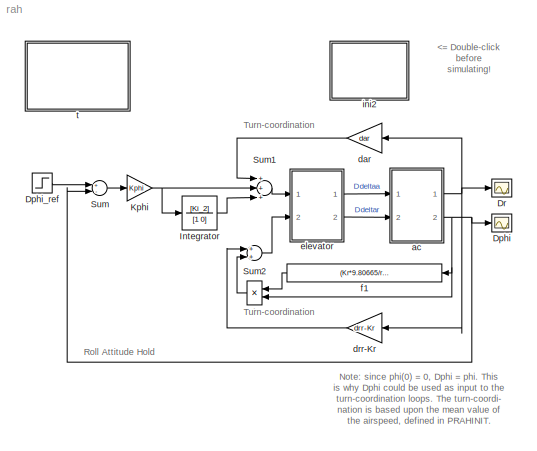
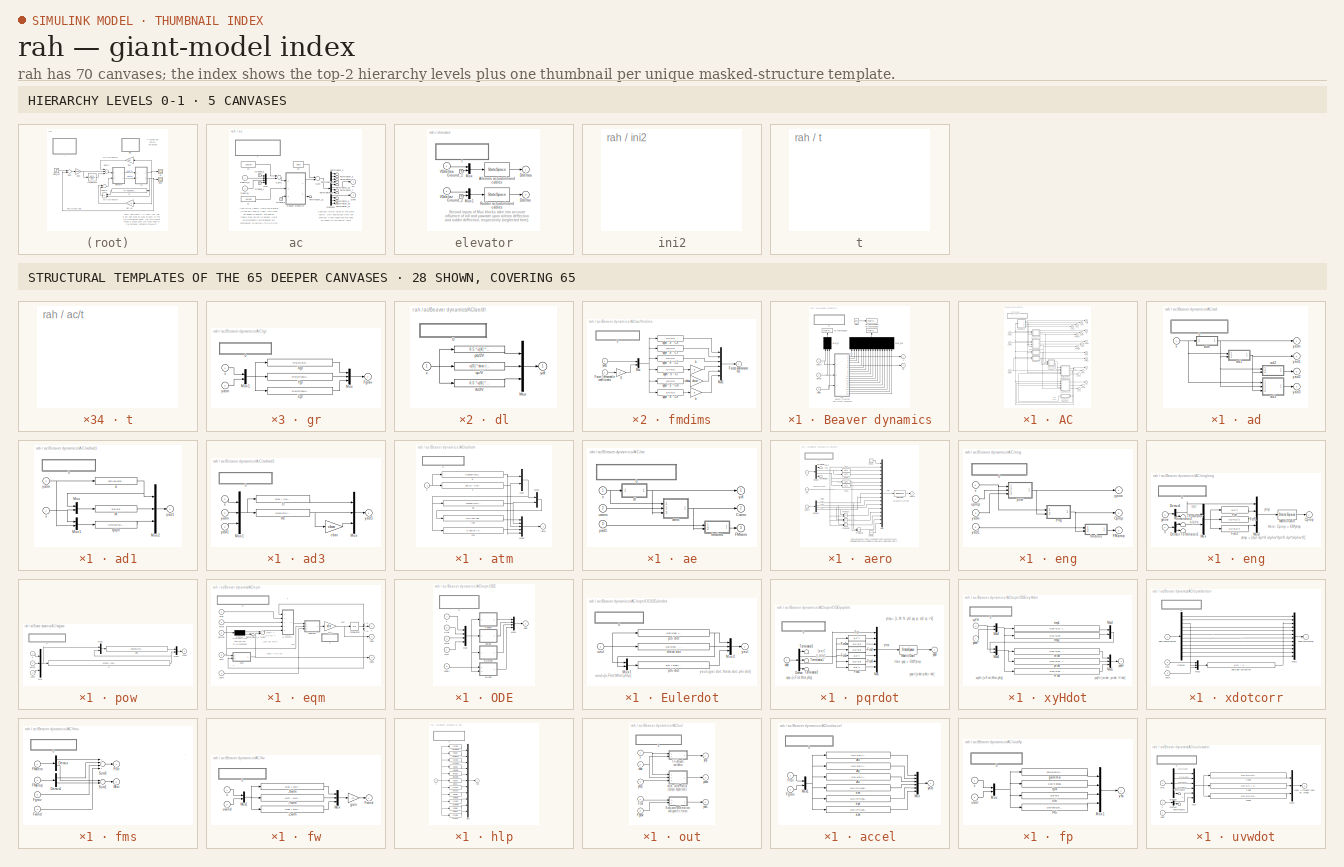
[diagram: thumbnail index - top-2 hierarchy levels (5 canvases) + 28 structural-template representatives of the remaining 65 canvases]
MODEL rah
KIND model
CONFIG AbsTol = 1e-6
CONFIG FixedStep = auto
CONFIG MaxStep = 5
CONFIG RelTol = 1e-6
CONFIG Solver = ode15s
CONFIG StartTime = 0.0
CONFIG StopTime = 60
BLOCK [Product] *
  Inputs = 2
  Ports = [2, 1, 0, 0, 0]
BLOCK [Scope] Dphi
  Decimation = 1
  Floating = off
  Grid = on
  LimitMaxRows = on
  MaxRows = 5000
  Ports = [1, 0, 0, 0, 0]
  SampleInput = off
  SampleTime = 0
  SaveName = ScopeData
  SaveToWorkspace = off
  TickLabels = on
  TimeRange = 60.000000
  YMax = 0.300000
  YMin = -0.300000
  ZoomMode = on
BLOCK [Step] Dphi_ref
  After = 10*pi/180
  Before = 0
  Time = 0
BLOCK [Scope] Dr
  Decimation = 1
  Floating = off
  Grid = on
  LimitMaxRows = on
  MaxRows = 5000
  Ports = [1, 0, 0, 0, 0]
  SampleInput = off
  SampleTime = 0
  SaveName = ScopeData
  SaveToWorkspace = off
  TickLabels = on
  TimeRange = 60.000000
  YMax = 0.025000
  YMin = -0.025000
  ZoomMode = on
BLOCK [TransferFcn] Integrator
  Denominator = [1 0]
  Numerator = [Ki_2]
BLOCK [Gain] Kphi
  Gain = Kphi
BLOCK [Sum] Sum
  Inputs = +-
  Ports = [2, 1, 0, 0, 0]
BLOCK [Sum] Sum1
  Inputs = +++
  Ports = [3, 1, 0, 0, 0]
BLOCK [Sum] Sum2
  Inputs = ++
  Ports = [2, 1, 0, 0, 0]
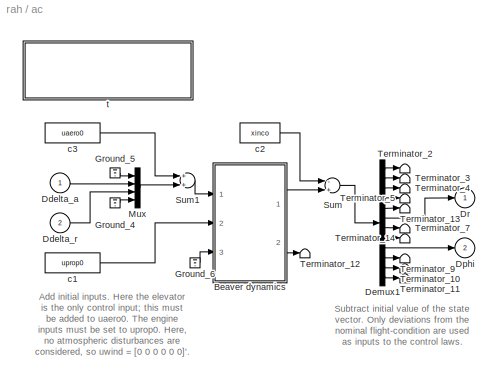
BLOCK [SubSystem] ac
  MaskDisplay = disp('BEAVER\\ndynamics')
  MaskIconFrame = on
  MaskIconOpaque = on
  MaskIconRotate = none
  MaskIconUnits = autoscale
  Ports = [2, 2, 0, 0, 0]
  ShowPortLabels = off
BLOCK [SubSystem] ac/Beaver dynamics
  Ports = [3, 2, 0, 0, 0]
  ShowPortLabels = on
BLOCK [SubSystem] ac/Beaver dynamics/0
  MaskDisplay = disp('Subsystem equivalent of\\nthe S-function BEAVER\\nM.O. Rauw, October 1997')
  MaskIconFrame = on
  MaskIconOpaque = on
  MaskIconRotate = none
  MaskIconUnits = autoscale
  OpenFcn = fdchelp level1
  Ports = [0, 0, 0, 0, 0]
  ShowPortLabels = off
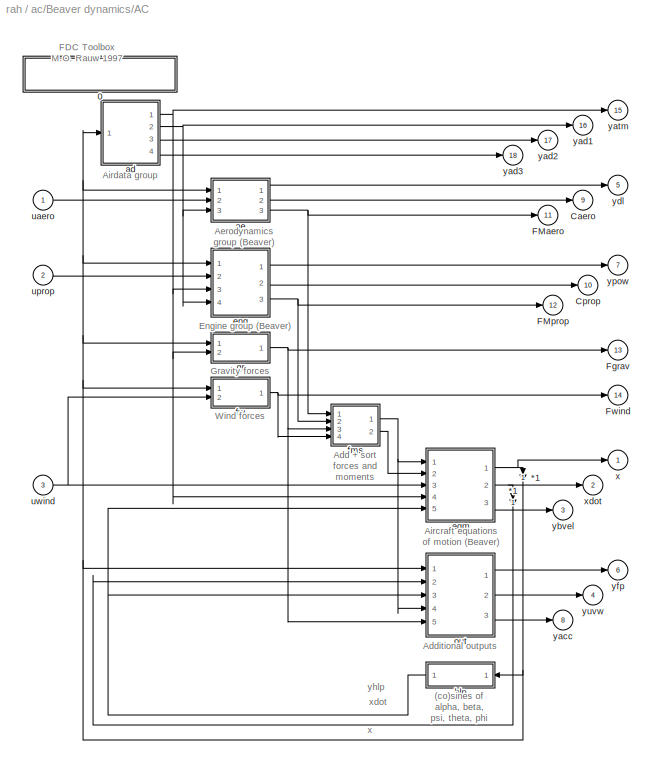
BLOCK [SubSystem] ac/Beaver dynamics/AC
  Ports = [3, 18, 0, 0, 0]
  ShowPortLabels = off
BLOCK [Gain] ac/Beaver dynamics/AC/ *1
  Gain = 1
BLOCK [Inport] ac/Beaver dynamics/AC/ uwind
  Port = 3
  PortWidth = -1
  SampleTime = -1
BLOCK [Gain] ac/Beaver dynamics/AC/*1
  Gain = 1
BLOCK [SubSystem] ac/Beaver dynamics/AC/0
  MaskDisplay = disp('BEAVER, level 2 (main level)\\nM.O. Rauw')
  MaskIconFrame = on
  MaskIconOpaque = on
  MaskIconRotate = none
  MaskIconUnits = autoscale
  OpenFcn = fdchelp level2
  Ports = [0, 0, 0, 0, 0]
  ShowPortLabels = off
BLOCK [Outport] ac/Beaver dynamics/AC/Caero
  InitialOutput = 0
  OutputWhenDisabled = held
  Port = 9
BLOCK [Outport] ac/Beaver dynamics/AC/Cprop
  InitialOutput = 0
  OutputWhenDisabled = held
  Port = 10
BLOCK [Outport] ac/Beaver dynamics/AC/FMaero
  InitialOutput = 0
  OutputWhenDisabled = held
  Port = 11
BLOCK [Outport] ac/Beaver dynamics/AC/FMprop
  InitialOutput = 0
  OutputWhenDisabled = held
  Port = 12
BLOCK [Outport] ac/Beaver dynamics/AC/Fgrav
  InitialOutput = 0
  OutputWhenDisabled = held
  Port = 13
BLOCK [Outport] ac/Beaver dynamics/AC/Fwind
  InitialOutput = 0
  OutputWhenDisabled = held
  Port = 14
BLOCK [SubSystem] ac/Beaver dynamics/AC/ad
  Ports = [1, 4, 0, 0, 0]
  ShowPortLabels = off
BLOCK [SubSystem] ac/Beaver dynamics/AC/ad/0
  MaskDisplay = disp('AIRDATA GROUP (level 3)\\nM.O. Rauw')
  MaskIconFrame = on
  MaskIconOpaque = on
  MaskIconRotate = none
  MaskIconUnits = autoscale
  OpenFcn = fdchelp adgrp
  Ports = [0, 0, 0, 0, 0]
  ShowPortLabels = off
BLOCK [SubSystem] ac/Beaver dynamics/AC/ad/ad1
  MaskDescription = Basic airdata variables
  MaskDisplay = disp('Airdata1')
  MaskHelp = eval('fdchelp airdata1')
  MaskIconFrame = on
  MaskIconOpaque = on
  MaskIconRotate = none
  MaskIconUnits = autoscale
  MaskType = Airdata1
  Ports = [2, 1, 0, 0, 0]
  ShowPortLabels = off
BLOCK [SubSystem] ac/Beaver dynamics/AC/ad/ad1/0
  MaskDisplay = disp('AIRDATA1\\nM.O. Rauw, October 1997')
  MaskIconFrame = on
  MaskIconOpaque = on
  MaskIconRotate = none
  MaskIconUnits = autoscale
  OpenFcn = fdchelp airdata1
  Ports = [0, 0, 0, 0, 0]
  ShowPortLabels = off
BLOCK [Fcn] ac/Beaver dynamics/AC/ad/ad1/M
  Expr = u[2]/u[1]
BLOCK [Mux] ac/Beaver dynamics/AC/ad/ad1/Mux
  Inputs = [1 12]
  Ports = [2, 1, 0, 0, 0]
BLOCK [Mux] ac/Beaver dynamics/AC/ad/ad1/Mux1
  Inputs = [12 5]
  Ports = [2, 1, 0, 0, 0]
BLOCK [Mux] ac/Beaver dynamics/AC/ad/ad1/Mux2
  Inputs = 3
  Ports = [3, 1, 0, 0, 0]
BLOCK [Fcn] ac/Beaver dynamics/AC/ad/ad1/a
  Expr = sqrt(401.8743*u[3])
BLOCK [Fcn] ac/Beaver dynamics/AC/ad/ad1/qdyn
  Expr = 0.5*u[13]*u[1]^2
BLOCK [Inport] ac/Beaver dynamics/AC/ad/ad1/x
  Port = 1
  PortWidth = -1
  SampleTime = -1
BLOCK [Outport] ac/Beaver dynamics/AC/ad/ad1/yad1
  InitialOutput = 0
  OutputWhenDisabled = held
  Port = 1
BLOCK [Inport] ac/Beaver dynamics/AC/ad/ad1/yatm
  Port = 2
  PortWidth = -1
  SampleTime = -1
BLOCK [SubSystem] ac/Beaver dynamics/AC/ad/ad2
  MaskDescription = More airdata variables
  MaskDisplay = disp('Airdata2')
  MaskHelp = eval('fdchelp airdata2')
  MaskIconFrame = on
  MaskIconOpaque = on
  MaskIconRotate = none
  MaskIconUnits = autoscale
  MaskType = Airdata2
  Ports = [2, 1, 0, 0, 0]
  ShowPortLabels = off
BLOCK [SubSystem] ac/Beaver dynamics/AC/ad/ad2/0
  MaskDisplay = disp('AIRDATA2\\nM.O. Rauw, October 1997')
  MaskIconFrame = on
  MaskIconOpaque = on
  MaskIconRotate = none
  MaskIconUnits = autoscale
  OpenFcn = fdchelp airdata2
  Ports = [0, 0, 0, 0, 0]
  ShowPortLabels = off
BLOCK [Mux] ac/Beaver dynamics/AC/ad/ad2/Mux
  Inputs = [5 3]
  Ports = [2, 1, 0, 0, 0]
BLOCK [Mux] ac/Beaver dynamics/AC/ad/ad2/Mux1
  Inputs = 3
  Ports = [3, 1, 0, 0, 0]
BLOCK [Fcn] ac/Beaver dynamics/AC/ad/ad2/Vc
  Expr = sqrt(579000*((1+u[1]/101325)^(1/3.5)-1))
BLOCK [Fcn] ac/Beaver dynamics/AC/ad/ad2/Ve
  Expr = sqrt(u[8] * 1.63265)
BLOCK [Fcn] ac/Beaver dynamics/AC/ad/ad2/qc
  Expr = u[2] * ((1+0.2*u[7]^2)^3.5-1)
BLOCK [Inport] ac/Beaver dynamics/AC/ad/ad2/yad1
  Port = 2
  PortWidth = -1
  SampleTime = -1
BLOCK [Outport] ac/Beaver dynamics/AC/ad/ad2/yad2
  InitialOutput = 0
  OutputWhenDisabled = held
  Port = 1
BLOCK [Inport] ac/Beaver dynamics/AC/ad/ad2/yatm
  Port = 1
  PortWidth = -1
  SampleTime = -1
BLOCK [SubSystem] ac/Beaver dynamics/AC/ad/ad3
  MaskDescription = More airdata variables
  MaskDisplay = disp('Airdata3')
  MaskHelp = eval('fdchelp airdata3')
  MaskIconFrame = on
  MaskIconOpaque = on
  MaskIconRotate = none
  MaskIconUnits = autoscale
  MaskPromptString = Mean aerodynamic chord [m]:
  MaskStyleString = edit
  MaskType = Airdata3
  MaskValueString = GM1(1)
  MaskVariables = cbar=@1;
  Ports = [3, 1, 0, 0, 0]
  ShowPortLabels = off
BLOCK [SubSystem] ac/Beaver dynamics/AC/ad/ad3/0
  MaskDisplay = disp('AIRDATA3\\nM.O. Rauw, October 1997')
  MaskIconFrame = on
  MaskIconOpaque = on
  MaskIconRotate = none
  MaskIconUnits = autoscale
  OpenFcn = fdchelp airdata3
  Ports = [0, 0, 0, 0, 0]
  ShowPortLabels = off
BLOCK [Mux] ac/Beaver dynamics/AC/ad/ad3/Mux
  Inputs = 3
  Ports = [3, 1, 0, 0, 0]
BLOCK [Mux] ac/Beaver dynamics/AC/ad/ad3/Mux1
  Inputs = [12 5 3]
  Ports = [3, 1, 0, 0, 0]
BLOCK [Fcn] ac/Beaver dynamics/AC/ad/ad3/Re
  Expr = (u[13]*u[1])/u[16]
BLOCK [Fcn] ac/Beaver dynamics/AC/ad/ad3/Tt
  Expr = u[15] * (1+0.2*u[19]^2)
BLOCK [Gain] ac/Beaver dynamics/AC/ad/ad3/cbar
  Gain = cbar
BLOCK [Inport] ac/Beaver dynamics/AC/ad/ad3/x
  Port = 1
  PortWidth = -1
  SampleTime = -1
BLOCK [Inport] ac/Beaver dynamics/AC/ad/ad3/yad1
  Port = 3
  PortWidth = -1
  SampleTime = -1
BLOCK [Outport] ac/Beaver dynamics/AC/ad/ad3/yad3
  InitialOutput = 0
  OutputWhenDisabled = held
  Port = 1
BLOCK [Inport] ac/Beaver dynamics/AC/ad/ad3/yatm
  Port = 2
  PortWidth = -1
  SampleTime = -1
BLOCK [SubSystem] ac/Beaver dynamics/AC/ad/atm
  MaskDescription = Atmosphere variables
  MaskDisplay = disp('Atmosph')
  MaskHelp = eval('fdchelp atmosph')
  MaskIconFrame = on
  MaskIconOpaque = on
  MaskIconRotate = none
  MaskIconUnits = autoscale
  MaskType = Atmosph
  Ports = [1, 1, 0, 0, 0]
  ShowPortLabels = off
BLOCK [SubSystem] ac/Beaver dynamics/AC/ad/atm/0
  MaskDisplay = disp('ATMOSPH\\nM.O. Rauw, October 1997')
  MaskIconFrame = on
  MaskIconOpaque = on
  MaskIconRotate = none
  MaskIconUnits = autoscale
  OpenFcn = fdchelp atmosph
  Ports = [0, 0, 0, 0, 0]
  ShowPortLabels = off
BLOCK [Mux] ac/Beaver dynamics/AC/ad/atm/Mux
  Inputs = 2
  Ports = [2, 1, 0, 0, 0]
BLOCK [Mux] ac/Beaver dynamics/AC/ad/atm/Mux1
  Inputs = [2 1]
  Ports = [2, 1, 0, 0, 0]
BLOCK [Mux] ac/Beaver dynamics/AC/ad/atm/Mux2
  Inputs = 5
  Ports = [5, 1, 0, 0, 0]
BLOCK [Fcn] ac/Beaver dynamics/AC/ad/atm/T
  Expr = 288.15 - 0.0065*u[12]
BLOCK [Fcn] ac/Beaver dynamics/AC/ad/atm/g
  Expr = 9.80665*(6371020/(6371020+u[12]))^2
BLOCK [Fcn] ac/Beaver dynamics/AC/ad/atm/mu
  Expr = (1.458*10^(-6)*u[2]^1.5)/(u[2]+110.4)
BLOCK [Fcn] ac/Beaver dynamics/AC/ad/atm/ps
  Expr = 101325*(u[2]/288.15)^(u[1]/1.86584)
BLOCK [Fcn] ac/Beaver dynamics/AC/ad/atm/rho
  Expr = u[3]/(287.053*u[2])
BLOCK [Inport] ac/Beaver dynamics/AC/ad/atm/x
  Port = 1
  PortWidth = -1
  SampleTime = -1
BLOCK [Outport] ac/Beaver dynamics/AC/ad/atm/yatm
  InitialOutput = 0
  OutputWhenDisabled = held
  Port = 1
BLOCK [Inport] ac/Beaver dynamics/AC/ad/x
  Port = 1
  PortWidth = -1
  SampleTime = -1
BLOCK [Outport] ac/Beaver dynamics/AC/ad/yad1
  InitialOutput = 0
  OutputWhenDisabled = held
  Port = 2
BLOCK [Outport] ac/Beaver dynamics/AC/ad/yad2
  InitialOutput = 0
  OutputWhenDisabled = held
  Port = 3
BLOCK [Outport] ac/Beaver dynamics/AC/ad/yad3
  InitialOutput = 0
  OutputWhenDisabled = held
  Port = 4
BLOCK [Outport] ac/Beaver dynamics/AC/ad/yatm
  InitialOutput = 0
  OutputWhenDisabled = held
  Port = 1
BLOCK [SubSystem] ac/Beaver dynamics/AC/ae
  Ports = [3, 3, 0, 0, 0]
  ShowPortLabels = off
BLOCK [SubSystem] ac/Beaver dynamics/AC/ae/0
  MaskDisplay = disp('AERODYNAMICS GROUP (level 3)\\nM.O. Rauw')
  MaskIconFrame = on
  MaskIconOpaque = on
  MaskIconRotate = none
  MaskIconUnits = autoscale
  OpenFcn = fdchelp aerogrp
  Ports = [0, 0, 0, 0, 0]
  ShowPortLabels = off
BLOCK [Outport] ac/Beaver dynamics/AC/ae/Caero
  InitialOutput = 0
  OutputWhenDisabled = held
  Port = 2
BLOCK [Outport] ac/Beaver dynamics/AC/ae/FMaero
  InitialOutput = 0
  OutputWhenDisabled = held
  Port = 3
BLOCK [SubSystem] ac/Beaver dynamics/AC/ae/aero
  MaskDescription = Aerodynamic model of the DHC-2 'Beaver'.
  MaskDisplay = disp('Aeromod\\n(Beaver)')
  MaskHelp = eval('fdchelp aeromod')
  MaskIconFrame = on
  MaskIconOpaque = on
  MaskIconRotate = none
  MaskIconUnits = autoscale
  MaskType = Aeromod
  Ports = [3, 1, 0, 0, 0]
  ShowPortLabels = off
BLOCK [SubSystem] ac/Beaver dynamics/AC/ae/aero/0
  MaskDisplay = disp('AEROMOD\\nM.O. Rauw, October 1997')
  MaskIconFrame = on
  MaskIconOpaque = on
  MaskIconRotate = none
  MaskIconUnits = autoscale
  OpenFcn = fdchelp aeromod
  Ports = [0, 0, 0, 0, 0]
  ShowPortLabels = off
BLOCK [Outport] ac/Beaver dynamics/AC/ae/aero/Caero
  InitialOutput = 0
  OutputWhenDisabled = held
  Port = 1
BLOCK [Demux] ac/Beaver dynamics/AC/ae/aero/Demux
  Outputs = [1 1 1 9]
  Ports = [1, 4, 0, 0, 0]
BLOCK [Demux] ac/Beaver dynamics/AC/ae/aero/Demux1
  Outputs = 4
  Ports = [1, 4, 0, 0, 0]
BLOCK [Fcn] ac/Beaver dynamics/AC/ae/aero/Fcn
  Expr = u[1]^2
BLOCK [Fcn] ac/Beaver dynamics/AC/ae/aero/Fcn1
  Expr = u[1]^3
BLOCK [Fcn] ac/Beaver dynamics/AC/ae/aero/Fcn2
  Expr = u[1]^2
BLOCK [Fcn] ac/Beaver dynamics/AC/ae/aero/Fcn3
  Expr = u[1]^3
BLOCK [StateSpace] ac/Beaver dynamics/AC/ae/aero/Matrix Gain
  A = A
  B = B
  C = C
  D = D
  MaskDescription = Matrix Gain
  MaskDisplay = disp('y = A*u')
  MaskHelp = This block implements an matrix gain.\\nThe matrix dimensions must be in accordance\\nwith the dimension of the inputvector.
  MaskIconFrame = on
  MaskIconOpaque = on
  MaskIconRotate = none
  MaskIconUnits = autoscale
  MaskInitialization = A = []; B = []; C = []; D = @1;
  MaskPromptString = Gain matrix:
  MaskStyleString = edit
  MaskType = Matrix Gain
  MaskValueString = AM
  X0 = 0
BLOCK [Mux] ac/Beaver dynamics/AC/ae/aero/Mux
  Inputs = [1 1 1 1 1 1 1 3 1 1 1 1 1 1 1 1 1]
  Ports = [17, 1, 0, 0, 0]
BLOCK [Product] ac/Beaver dynamics/AC/ae/aero/Product
  Inputs = 2
  Ports = [2, 1, 0, 0, 0]
BLOCK [Product] ac/Beaver dynamics/AC/ae/aero/Product1
  Inputs = 2
  Ports = [2, 1, 0, 0, 0]
BLOCK [Product] ac/Beaver dynamics/AC/ae/aero/Product2
  Inputs = 2
  Ports = [2, 1, 0, 0, 0]
BLOCK [Product] ac/Beaver dynamics/AC/ae/aero/Product3
  Inputs = 2
  Ports = [2, 1, 0, 0, 0]
BLOCK [Terminator] ac/Beaver dynamics/AC/ae/aero/Terminator
BLOCK [Terminator] ac/Beaver dynamics/AC/ae/aero/Terminator1
BLOCK [Constant] ac/Beaver dynamics/AC/ae/aero/const
  Value = 1
BLOCK [Constant] ac/Beaver dynamics/AC/ae/aero/const1
  Value = 0
BLOCK [Inport] ac/Beaver dynamics/AC/ae/aero/uaero
  Port = 2
  PortWidth = -1
  SampleTime = -1
BLOCK [Inport] ac/Beaver dynamics/AC/ae/aero/x
  Port = 1
  PortWidth = -1
  SampleTime = -1
BLOCK [Inport] ac/Beaver dynamics/AC/ae/aero/ydl
  Port = 3
  PortWidth = -1
  SampleTime = -1
BLOCK [SubSystem] ac/Beaver dynamics/AC/ae/dl
  MaskDescription = Dimensionless rotational velocities.
  MaskDisplay = disp('Dimless')
  MaskHelp = eval('fdchelp dimless')
  MaskIconFrame = on
  MaskIconOpaque = on
  MaskIconRotate = none
  MaskIconUnits = autoscale
  MaskPromptString = Mean aerodynamic chord [m]:|Wing span [m]:
  MaskStyleString = edit,edit
  MaskType = Dimless
  MaskValueString = GM1(1)|GM1(2)
  MaskVariables = cbar=@1;b=@2;
  Ports = [1, 1, 0, 0, 0]
  ShowPortLabels = off
BLOCK [SubSystem] ac/Beaver dynamics/AC/ae/dl/0
  MaskDisplay = disp('DIMLESS\\nM.O. Rauw, October 1997')
  MaskIconFrame = on
  MaskIconOpaque = on
  MaskIconRotate = none
  MaskIconUnits = autoscale
  OpenFcn = fdchelp dimless
  Ports = [0, 0, 0, 0, 0]
  ShowPortLabels = off
BLOCK [Mux] ac/Beaver dynamics/AC/ae/dl/Mux
  Inputs = 3
  Ports = [3, 1, 0, 0, 0]
BLOCK [Fcn] ac/Beaver dynamics/AC/ae/dl/pb//2V
  Expr = 0.5 * u[4] * b / u[1]
BLOCK [Fcn] ac/Beaver dynamics/AC/ae/dl/qc//V
  Expr = u[5] * cbar / u[1]
BLOCK [Fcn] ac/Beaver dynamics/AC/ae/dl/rb//2V
  Expr = 0.5 * u[6] * b / u[1]
BLOCK [Inport] ac/Beaver dynamics/AC/ae/dl/x
  Port = 1
  PortWidth = -1
  SampleTime = -1
BLOCK [Outport] ac/Beaver dynamics/AC/ae/dl/ydl
  InitialOutput = 0
  OutputWhenDisabled = held
  Port = 1
BLOCK [SubSystem] ac/Beaver dynamics/AC/ae/fmdims
  MaskDescription = Calculate forces and moments from\ndimensionless coefficients.
  MaskDisplay = disp('FMdims')
  MaskHelp = eval('fdchelp fmdims')
  MaskIconFrame = on
  MaskIconOpaque = on
  MaskIconRotate = none
  MaskIconUnits = autoscale
  MaskPromptString = Mean aerodynamic chord [m]:|Wing span [m]:|Wing surface [m^2]:
  MaskStyleString = edit,edit,edit
  MaskType = FMdims
  MaskValueString = GM1(1)|GM1(2)|GM1(3)
  MaskVariables = cbar=@1;b=@2;S=@3;
  Ports = [2, 1, 0, 0, 0]
  ShowPortLabels = off
BLOCK [SubSystem] ac/Beaver dynamics/AC/ae/fmdims/0
  MaskDisplay = disp('FMDIMS\\nM.O. Rauw, October 1997')
  MaskIconFrame = on
  MaskIconOpaque = on
  MaskIconRotate = none
  MaskIconUnits = autoscale
  OpenFcn = fdchelp fmdims
  Ports = [0, 0, 0, 0, 0]
  ShowPortLabels = off
BLOCK [Inport] ac/Beaver dynamics/AC/ae/fmdims/Force //\nmoment\ncoefficients
  Port = 2
  PortWidth = -1
  SampleTime = -1
BLOCK [Outport] ac/Beaver dynamics/AC/ae/fmdims/Forces and\nmoments
  InitialOutput = 0
  OutputWhenDisabled = held
  Port = 1
BLOCK [Mux] ac/Beaver dynamics/AC/ae/fmdims/Mux
  Inputs = [3 6]
  Ports = [2, 1, 0, 0, 0]
BLOCK [Mux] ac/Beaver dynamics/AC/ae/fmdims/Mux1
  Inputs = 6
  Ports = [6, 1, 0, 0, 0]
BLOCK [Gain] ac/Beaver dynamics/AC/ae/fmdims/S
  Gain = S
BLOCK [Gain] ac/Beaver dynamics/AC/ae/fmdims/b
  Gain = b
BLOCK [Gain] ac/Beaver dynamics/AC/ae/fmdims/b 
  Gain = b
BLOCK [Gain] ac/Beaver dynamics/AC/ae/fmdims/cbar
  Gain = cbar
BLOCK [Fcn] ac/Beaver dynamics/AC/ae/fmdims/qdyn * S * CX
  Expr = u[4]*u[3]
BLOCK [Fcn] ac/Beaver dynamics/AC/ae/fmdims/qdyn * S * CY
  Expr = u[5]*u[3]
BLOCK [Fcn] ac/Beaver dynamics/AC/ae/fmdims/qdyn * S * CZ
  Expr = u[6]*u[3]
BLOCK [Fcn] ac/Beaver dynamics/AC/ae/fmdims/qdyn * S * Cl
  Expr = u[7]*u[3]
BLOCK [Fcn] ac/Beaver dynamics/AC/ae/fmdims/qdyn * S * Cm
  Expr = u[8]*u[3]
BLOCK [Fcn] ac/Beaver dynamics/AC/ae/fmdims/qdyn * S * Cn
  Expr = u[9]*u[3]
BLOCK [Inport] ac/Beaver dynamics/AC/ae/fmdims/yad1
  Port = 1
  PortWidth = -1
  SampleTime = -1
BLOCK [Inport] ac/Beaver dynamics/AC/ae/uaero
  Port = 2
  PortWidth = -1
  SampleTime = -1
BLOCK [Inport] ac/Beaver dynamics/AC/ae/x
  Port = 1
  PortWidth = -1
  SampleTime = -1
BLOCK [Inport] ac/Beaver dynamics/AC/ae/yad1
  Port = 3
  PortWidth = -1
  SampleTime = -1
BLOCK [Outport] ac/Beaver dynamics/AC/ae/ydl
  InitialOutput = 0
  OutputWhenDisabled = held
  Port = 1
BLOCK [SubSystem] ac/Beaver dynamics/AC/eng
  Ports = [4, 3, 0, 0, 0]
  ShowPortLabels = off
BLOCK [SubSystem] ac/Beaver dynamics/AC/eng/0
  MaskDisplay = disp('ENGINE GROUP (level 3)\\nM.O. Rauw')
  MaskIconFrame = on
  MaskIconOpaque = on
  MaskIconRotate = none
  MaskIconUnits = autoscale
  OpenFcn = fdchelp enggrp
  Ports = [0, 0, 0, 0, 0]
  ShowPortLabels = off
BLOCK [Outport] ac/Beaver dynamics/AC/eng/Cprop
  InitialOutput = 0
  OutputWhenDisabled = held
  Port = 2
BLOCK [Outport] ac/Beaver dynamics/AC/eng/FMprop
  InitialOutput = 0
  OutputWhenDisabled = held
  Port = 3
BLOCK [SubSystem] ac/Beaver dynamics/AC/eng/eng
  MaskDescription = Engine model for the DHC-2 'Beaver'
  MaskDisplay = disp('Engmod\\n(Beaver)')
  MaskHelp = eval('fdchelp engmod')
  MaskIconFrame = on
  MaskIconOpaque = on
  MaskIconRotate = none
  MaskIconUnits = autoscale
  MaskType = Engmod
  Ports = [2, 1, 0, 0, 0]
  ShowPortLabels = off
BLOCK [SubSystem] ac/Beaver dynamics/AC/eng/eng/0
  MaskDisplay = disp('ENGMOD\\nM.O. Rauw, Dec. 1996')
  MaskIconFrame = on
  MaskIconOpaque = on
  MaskIconRotate = none
  MaskIconUnits = autoscale
  OpenFcn = fdchelp engmod
  Ports = [0, 0, 0, 0, 0]
  ShowPortLabels = off
BLOCK [Outport] ac/Beaver dynamics/AC/eng/eng/Cprop
  InitialOutput = 0
  OutputWhenDisabled = held
  Port = 1
BLOCK [Demux] ac/Beaver dynamics/AC/eng/eng/Demux
  Outputs = [1 1 10]
  Ports = [1, 3, 0, 0, 0]
BLOCK [Demux] ac/Beaver dynamics/AC/eng/eng/Demux1
  Outputs = 2
  Ports = [1, 2, 0, 0, 0]
BLOCK [Fcn] ac/Beaver dynamics/AC/eng/eng/Fcn
  Expr = u[1]^3
BLOCK [Fcn] ac/Beaver dynamics/AC/eng/eng/Fcn1
  Expr = u[2]*u[1]^2
BLOCK [Fcn] ac/Beaver dynamics/AC/eng/eng/Fcn2
  Expr = u[1]*u[2]^2
BLOCK [StateSpace] ac/Beaver dynamics/AC/eng/eng/Matrix Gain
  A = A
  B = B
  C = C
  D = D
  MaskDescription = Matrix Gain
  MaskDisplay = disp('y = A*u')
  MaskHelp = This block implements an matrix gain.\\nThe matrix dimensions must be in accordance\\nwith the dimension of the inputvector.
  MaskIconFrame = on
  MaskIconOpaque = on
  MaskIconRotate = none
  MaskIconUnits = autoscale
  MaskInitialization = A = []; B = []; C = []; D = @1;
  MaskPromptString = Gain matrix:
  MaskStyleString = edit
  MaskType = Matrix Gain
  MaskValueString = EM
  X0 = 0
BLOCK [Mux] ac/Beaver dynamics/AC/eng/eng/Mux
  Inputs = 2
  Ports = [2, 1, 0, 0, 0]
BLOCK [Mux] ac/Beaver dynamics/AC/eng/eng/Mux1
  Inputs = 4
  Ports = [4, 1, 0, 0, 0]
BLOCK [Terminator] ac/Beaver dynamics/AC/eng/eng/Terminator
BLOCK [Terminator] ac/Beaver dynamics/AC/eng/eng/Terminator1
BLOCK [Terminator] ac/Beaver dynamics/AC/eng/eng/Terminator2
BLOCK [Inport] ac/Beaver dynamics/AC/eng/eng/x
  Port = 1
  PortWidth = -1
  SampleTime = -1
BLOCK [Inport] ac/Beaver dynamics/AC/eng/eng/ypow
  Port = 2
  PortWidth = -1
  SampleTime = -1
BLOCK [SubSystem] ac/Beaver dynamics/AC/eng/fmdims
  MaskDescription = Calculate forces and moments from\ndimensionless coefficients.
  MaskDisplay = disp('FMdims')
  MaskHelp = eval('fdchelp fmdims')
  MaskIconFrame = on
  MaskIconOpaque = on
  MaskIconRotate = none
  MaskIconUnits = autoscale
  MaskPromptString = Mean aerodynamic chord [m]:|Wing span [m]:|Wing surface [m^2]:
  MaskStyleString = edit,edit,edit
  MaskType = FMdims
  MaskValueString = GM1(1)|GM1(2)|GM1(3)
  MaskVariables = cbar=@1;b=@2;S=@3;
  Ports = [2, 1, 0, 0, 0]
  ShowPortLabels = off
BLOCK [SubSystem] ac/Beaver dynamics/AC/eng/fmdims/0
  MaskDisplay = disp('FMDIMS\\nM.O. Rauw, October 1997')
  MaskIconFrame = on
  MaskIconOpaque = on
  MaskIconRotate = none
  MaskIconUnits = autoscale
  OpenFcn = fdchelp fmdims
  Ports = [0, 0, 0, 0, 0]
  ShowPortLabels = off
BLOCK [Inport] ac/Beaver dynamics/AC/eng/fmdims/Force //\nmoment\ncoefficients
  Port = 2
  PortWidth = -1
  SampleTime = -1
BLOCK [Outport] ac/Beaver dynamics/AC/eng/fmdims/Forces and\nmoments
  InitialOutput = 0
  OutputWhenDisabled = held
  Port = 1
BLOCK [Mux] ac/Beaver dynamics/AC/eng/fmdims/Mux
  Inputs = [3 6]
  Ports = [2, 1, 0, 0, 0]
BLOCK [Mux] ac/Beaver dynamics/AC/eng/fmdims/Mux1
  Inputs = 6
  Ports = [6, 1, 0, 0, 0]
BLOCK [Gain] ac/Beaver dynamics/AC/eng/fmdims/S
  Gain = S
BLOCK [Gain] ac/Beaver dynamics/AC/eng/fmdims/b
  Gain = b
BLOCK [Gain] ac/Beaver dynamics/AC/eng/fmdims/b 
  Gain = b
BLOCK [Gain] ac/Beaver dynamics/AC/eng/fmdims/cbar
  Gain = cbar
BLOCK [Fcn] ac/Beaver dynamics/AC/eng/fmdims/qdyn * S * CX
  Expr = u[4]*u[3]
BLOCK [Fcn] ac/Beaver dynamics/AC/eng/fmdims/qdyn * S * CY
  Expr = u[5]*u[3]
BLOCK [Fcn] ac/Beaver dynamics/AC/eng/fmdims/qdyn * S * CZ
  Expr = u[6]*u[3]
BLOCK [Fcn] ac/Beaver dynamics/AC/eng/fmdims/qdyn * S * Cl
  Expr = u[7]*u[3]
BLOCK [Fcn] ac/Beaver dynamics/AC/eng/fmdims/qdyn * S * Cm
  Expr = u[8]*u[3]
BLOCK [Fcn] ac/Beaver dynamics/AC/eng/fmdims/qdyn * S * Cn
  Expr = u[9]*u[3]
BLOCK [Inport] ac/Beaver dynamics/AC/eng/fmdims/yad1
  Port = 1
  PortWidth = -1
  SampleTime = -1
BLOCK [SubSystem] ac/Beaver dynamics/AC/eng/pow
  MaskDescription = Engine power and dimensionless\npressure increase across propeller\n(model for DHC-2 'Beaver')
  MaskDisplay = disp('Power\\n(Beaver)')
  MaskHelp = eval('fdchelp power')
  MaskIconFrame = on
  MaskIconOpaque = on
  MaskIconRotate = none
  MaskIconUnits = autoscale
  MaskType = Power
  Ports = [3, 1, 0, 0, 0]
  ShowPortLabels = off
BLOCK [SubSystem] ac/Beaver dynamics/AC/eng/pow/0
  MaskDisplay = disp('POWER\\nM.O. Rauw, October 1997')
  MaskIconFrame = on
  MaskIconOpaque = on
  MaskIconRotate = none
  MaskIconUnits = autoscale
  OpenFcn = fdchelp power
  Ports = [0, 0, 0, 0, 0]
  ShowPortLabels = off
BLOCK [Mux] ac/Beaver dynamics/AC/eng/pow/Mux
  Inputs = [12 2 5]
  Ports = [3, 1, 0, 0, 0]
BLOCK [Mux] ac/Beaver dynamics/AC/eng/pow/Mux1
  Inputs = [19 1]
  Ports = [2, 1, 0, 0, 0]
BLOCK [Mux] ac/Beaver dynamics/AC/eng/pow/Mux2
  Inputs = 2
  Ports = [2, 1, 0, 0, 0]
BLOCK [Fcn] ac/Beaver dynamics/AC/eng/pow/P
  Expr = 0.7355*(-326.5+0.00412*(u[14]+7.4)*(u[13]+2010)+(408.0-0.0965*u[13])*(1.0-u[15]/1.225))
BLOCK [Fcn] ac/Beaver dynamics/AC/eng/pow/dpt
  Expr = 0.08696 + 191.18*(u[20]/(0.5*u[15]*u[1]^3))
BLOCK [Inport] ac/Beaver dynamics/AC/eng/pow/uprop
  Port = 2
  PortWidth = -1
  SampleTime = -1
BLOCK [Inport] ac/Beaver dynamics/AC/eng/pow/x
  Port = 1
  PortWidth = -1
  SampleTime = -1
BLOCK [Inport] ac/Beaver dynamics/AC/eng/pow/yatm
  Port = 3
  PortWidth = -1
  SampleTime = -1
BLOCK [Outport] ac/Beaver dynamics/AC/eng/pow/ypow
  InitialOutput = 0
  OutputWhenDisabled = held
  Port = 1
BLOCK [Inport] ac/Beaver dynamics/AC/eng/uprop
  Port = 2
  PortWidth = -1
  SampleTime = -1
BLOCK [Inport] ac/Beaver dynamics/AC/eng/x
  Port = 1
  PortWidth = -1
  SampleTime = -1
BLOCK [Inport] ac/Beaver dynamics/AC/eng/yad1
  Port = 4
  PortWidth = -1
  SampleTime = -1
BLOCK [Inport] ac/Beaver dynamics/AC/eng/yatm
  Port = 3
  PortWidth = -1
  SampleTime = -1
BLOCK [Outport] ac/Beaver dynamics/AC/eng/ypow
  InitialOutput = 0
  OutputWhenDisabled = held
  Port = 1
BLOCK [SubSystem] ac/Beaver dynamics/AC/eqm
  Ports = [5, 3, 0, 0, 0]
  ShowPortLabels = off
BLOCK [Gain] ac/Beaver dynamics/AC/eqm/ *1
  Gain = 1
BLOCK [Gain] ac/Beaver dynamics/AC/eqm/*1
  Gain = 1
BLOCK [SubSystem] ac/Beaver dynamics/AC/eqm/0
  MaskDisplay = disp('EQUATIONS OF MOTION (level 3)\\nM.O. Rauw')
  MaskIconFrame = on
  MaskIconOpaque = on
  MaskIconRotate = none
  MaskIconUnits = autoscale
  OpenFcn = fdchelp eqmotion
  Ports = [0, 0, 0, 0, 0]
  ShowPortLabels = off
BLOCK [SubSystem] ac/Beaver dynamics/AC/eqm/?
  MaskDisplay = disp('More info\\nfor xfix')
  MaskIconFrame = on
  MaskIconOpaque = on
  MaskIconRotate = none
  MaskIconUnits = autoscale
  OpenFcn = fdchelp xfix
  Ports = [0, 0, 0, 0, 0]
  ShowPortLabels = off
BLOCK [Demux] ac/Beaver dynamics/AC/eqm/Demux
  Outputs = [3 3]
  Ports = [1, 2, 0, 0, 0]
BLOCK [Inport] ac/Beaver dynamics/AC/eqm/Ftot
  Port = 1
  PortWidth = -1
  SampleTime = -1
BLOCK [Integrator] ac/Beaver dynamics/AC/eqm/Integrator
  AbsoluteTolerance = auto
  ExternalReset = none
  InitialCondition = xinco
  InitialConditionSource = internal
  LimitOutput = off
  LowerSaturationLimit = -inf
  Ports = [1, 1, 0, 0, 0]
  ShowSaturationPort = off
  ShowStatePort = off
  UpperSaturationLimit = inf
BLOCK [Inport] ac/Beaver dynamics/AC/eqm/Mtot
  Port = 2
  PortWidth = -1
  SampleTime = -1
BLOCK [SubSystem] ac/Beaver dynamics/AC/eqm/ODE
  Ports = [5, 1, 0, 0, 0]
  ShowPortLabels = off
BLOCK [SubSystem] ac/Beaver dynamics/AC/eqm/ODE/0
  MaskDisplay = disp('12 Ordinary Differential\\nEquations (level 4)\\nM.O. Rauw')
  MaskIconFrame = on
  MaskIconOpaque = on
  MaskIconRotate = none
  MaskIconUnits = autoscale
  OpenFcn = fdchelp 12odes
  Ports = [0, 0, 0, 0, 0]
  ShowPortLabels = off
BLOCK [SubSystem] ac/Beaver dynamics/AC/eqm/ODE/Eulerdot
  MaskDescription = Calculation of d(psi)/dt, d(theta)/dt,\nand d(phi/dt)
  MaskDisplay = disp('psi dot\\ntheta dot\\nphi dot')
  MaskHelp = eval('fdchelp eulerdot')
  MaskIconFrame = on
  MaskIconOpaque = on
  MaskIconRotate = none
  MaskIconUnits = autoscale
  MaskType = Eulerdot
  Ports = [1, 1, 0, 0, 0]
  ShowPortLabels = off
BLOCK [SubSystem] ac/Beaver dynamics/AC/eqm/ODE/Eulerdot/0
  MaskDisplay = disp('EULERDOT\\nM.O. Rauw, October 1997')
  MaskIconFrame = on
  MaskIconOpaque = on
  MaskIconRotate = none
  MaskIconUnits = autoscale
  OpenFcn = fdchelp eulerdot
  Ports = [0, 0, 0, 0, 0]
  ShowPortLabels = off
BLOCK [Mux] ac/Beaver dynamics/AC/eqm/ODE/Eulerdot/Mux1
  Inputs = [29 1]
  Ports = [2, 1, 0, 0, 0]
BLOCK [Mux] ac/Beaver dynamics/AC/eqm/ODE/Eulerdot/Mux2
  Inputs = 3
  Ports = [3, 1, 0, 0, 0]
BLOCK [Fcn] ac/Beaver dynamics/AC/eqm/ODE/Eulerdot/phi dot
  Expr = u[4] + u[30]*u[26]
BLOCK [Fcn] ac/Beaver dynamics/AC/eqm/ODE/Eulerdot/psi dot
  Expr = (u[5]*u[28] + u[6]*u[29])/u[27]
BLOCK [Fcn] ac/Beaver dynamics/AC/eqm/ODE/Eulerdot/theta dot
  Expr = u[5]*u[29] - u[6]*u[28]
BLOCK [Inport] ac/Beaver dynamics/AC/eqm/ODE/Eulerdot/ueul
  Port = 1
  PortWidth = -1
  SampleTime = -1
BLOCK [Outport] ac/Beaver dynamics/AC/eqm/ODE/Eulerdot/yeul
  InitialOutput = 0
  OutputWhenDisabled = held
  Port = 1
BLOCK [Inport] ac/Beaver dynamics/AC/eqm/ODE/Ftot
  Port = 2
  PortWidth = -1
  SampleTime = -1
BLOCK [Inport] ac/Beaver dynamics/AC/eqm/ODE/Mtot
  Port = 3
  PortWidth = -1
  SampleTime = -1
BLOCK [Mux] ac/Beaver dynamics/AC/eqm/ODE/Mux
  Inputs = [12 3 3 11]
  Ports = [4, 1, 0, 0, 0]
BLOCK [Mux] ac/Beaver dynamics/AC/eqm/ODE/Mux1
  Inputs = [3 3 3 3]
  Ports = [4, 1, 0, 0, 0]
BLOCK [SubSystem] ac/Beaver dynamics/AC/eqm/ODE/Vabdot
  MaskDescription = Calculation of dV/dt, dalpha/dt, dbeta/dt.
  MaskDisplay = disp('V dot\\nalpha dot\\nbeta dot')
  MaskHelp = eval('fdchelp vabdot')
  MaskIconFrame = on
  MaskIconOpaque = on
  MaskIconRotate = none
  MaskIconUnits = autoscale
  MaskPromptString = Mass of the aircraft [kg]:
  MaskStyleString = edit
  MaskType = Vabdot
  MaskValueString = GM1(10)
  MaskVariables = m=@1;
  Ports = [1, 1, 0, 0, 0]
  ShowPortLabels = off
BLOCK [SubSystem] ac/Beaver dynamics/AC/eqm/ODE/Vabdot/0
  MaskDisplay = disp('VABDOT\\nM.O. Rauw, October 1997')
  MaskIconFrame = on
  MaskIconOpaque = on
  MaskIconRotate = none
  MaskIconUnits = autoscale
  OpenFcn = fdchelp vabdot
  Ports = [0, 0, 0, 0, 0]
  ShowPortLabels = off
BLOCK [Mux] ac/Beaver dynamics/AC/eqm/ODE/Vabdot/Mux2
  Inputs = 3
  Ports = [3, 1, 0, 0, 0]
BLOCK [Fcn] ac/Beaver dynamics/AC/eqm/ODE/Vabdot/V dot
  Expr = (u[13]*u[19]*u[21]+u[14]*u[22]+u[15]*u[20]*u[21])/m
BLOCK [Fcn] ac/Beaver dynamics/AC/eqm/ODE/Vabdot/alpha dot
  Expr = (-u[13]*u[20]+u[15]*u[19])/(m*u[1]*u[21]) - u[23]*(u[4]*u[19]+u[6]*u[20]) + u[5]
BLOCK [Fcn] ac/Beaver dynamics/AC/eqm/ODE/Vabdot/beta dot
  Expr = (-u[13]*u[19]*u[22]+u[14]*u[21]-u[15]*u[20]*u[22])/(m*u[1]) + u[4]*u[20] - u[6]*u[19]
BLOCK [Inport] ac/Beaver dynamics/AC/eqm/ODE/Vabdot/uVab
  Port = 1
  PortWidth = -1
  SampleTime = -1
BLOCK [Outport] ac/Beaver dynamics/AC/eqm/ODE/Vabdot/yVab
  InitialOutput = 0
  OutputWhenDisabled = held
  Port = 1
BLOCK [SubSystem] ac/Beaver dynamics/AC/eqm/ODE/pqrdot
  MaskDescription = Calculation of dp/dt, dq/dt, and dr/dt
  MaskDisplay = disp('p dot\\nq dot\\nr dot')
  MaskHelp = eval('fdchelp pqrdot')
  MaskIconFrame = on
  MaskIconOpaque = on
  MaskIconRotate = none
  MaskIconUnits = autoscale
  MaskType = pqrdot
  Ports = [1, 1, 0, 0, 0]
  ShowPortLabels = off
BLOCK [SubSystem] ac/Beaver dynamics/AC/eqm/ODE/pqrdot/0
  MaskDisplay = disp('PQRDOT\\nM.O. Rauw, October 1997')
  MaskIconFrame = on
  MaskIconOpaque = on
  MaskIconRotate = none
  MaskIconUnits = autoscale
  OpenFcn = fdchelp pqrdot
  Ports = [0, 0, 0, 0, 0]
  ShowPortLabels = off
BLOCK [Demux] ac/Beaver dynamics/AC/eqm/ODE/pqrdot/Demux
  Outputs = [3 3 9 3 11]
  Ports = [1, 5, 0, 0, 0]
BLOCK [Fcn] ac/Beaver dynamics/AC/eqm/ODE/pqrdot/Fcn
  Expr = u[1]^2
BLOCK [Fcn] ac/Beaver dynamics/AC/eqm/ODE/pqrdot/Fcn1
  Expr = u[1]*u[2]
BLOCK [Fcn] ac/Beaver dynamics/AC/eqm/ODE/pqrdot/Fcn2
  Expr = u[1]*u[3]
BLOCK [Fcn] ac/Beaver dynamics/AC/eqm/ODE/pqrdot/Fcn3
  Expr = u[2]^2
BLOCK [Fcn] ac/Beaver dynamics/AC/eqm/ODE/pqrdot/Fcn4
  Expr = u[2]*u[3]
BLOCK [Fcn] ac/Beaver dynamics/AC/eqm/ODE/pqrdot/Fcn5
  Expr = u[3]^2
BLOCK [StateSpace] ac/Beaver dynamics/AC/eqm/ODE/pqrdot/Matrix Gain
  A = A
  B = B
  C = C
  D = D
  MaskDescription = Matrix Gain
  MaskDisplay = disp('y = A*u')
  MaskHelp = This block implements an matrix gain.\\nThe matrix dimensions must be in accordance\\nwith the dimension of the inputvector.
  MaskIconFrame = on
  MaskIconOpaque = on
  MaskIconRotate = none
  MaskIconUnits = autoscale
  MaskInitialization = A = []; B = []; C = []; D = @1;
  MaskPromptString = Gain matrix:
  MaskStyleString = edit
  MaskType = Matrix Gain
  MaskValueString = GM2
  X0 = 0
BLOCK [Mux] ac/Beaver dynamics/AC/eqm/ODE/pqrdot/Mux
  Inputs = [3 1 1 1 1 1 1]
  Ports = [7, 1, 0, 0, 0]
BLOCK [Terminator] ac/Beaver dynamics/AC/eqm/ODE/pqrdot/Terminator1
BLOCK [Terminator] ac/Beaver dynamics/AC/eqm/ODE/pqrdot/Terminator2
BLOCK [Terminator] ac/Beaver dynamics/AC/eqm/ODE/pqrdot/Terminator3
BLOCK [Inport] ac/Beaver dynamics/AC/eqm/ODE/pqrdot/upqr
  Port = 1
  PortWidth = -1
  SampleTime = -1
BLOCK [Outport] ac/Beaver dynamics/AC/eqm/ODE/pqrdot/ypqr
  InitialOutput = 0
  OutputWhenDisabled = held
  Port = 1
BLOCK [Inport] ac/Beaver dynamics/AC/eqm/ODE/x
  Port = 1
  PortWidth = -1
  SampleTime = -1
BLOCK [Outport] ac/Beaver dynamics/AC/eqm/ODE/xdot
  InitialOutput = 0
  OutputWhenDisabled = held
  Port = 1
BLOCK [SubSystem] ac/Beaver dynamics/AC/eqm/ODE/xyHdot
  MaskDescription = Calculation of d(xe)/dt, d(ye)/dt, and dH/dt
  MaskDisplay = disp('xe dot\\nye dot\\nH dot')
  MaskHelp = eval('fdchelp xyhdot')
  MaskIconFrame = on
  MaskIconOpaque = on
  MaskIconRotate = none
  MaskIconUnits = autoscale
  MaskType = xyHdot
  Ports = [2, 1, 0, 0, 0]
  ShowPortLabels = off
BLOCK [SubSystem] ac/Beaver dynamics/AC/eqm/ODE/xyHdot/0
  MaskDisplay = disp('XYHDOT\\nM.O. Rauw, October 1997')
  MaskIconFrame = on
  MaskIconOpaque = on
  MaskIconRotate = none
  MaskIconUnits = autoscale
  OpenFcn = fdchelp xyhdot
  Ports = [0, 0, 0, 0, 0]
  ShowPortLabels = off
BLOCK [Fcn] ac/Beaver dynamics/AC/eqm/ODE/xyHdot/H dot
  Expr = u[30]*u[26] - (u[31]*u[28]+u[32]*u[29])*u[27]
BLOCK [Mux] ac/Beaver dynamics/AC/eqm/ODE/xyHdot/Mux2
  Inputs = [29 3]
  Ports = [2, 1, 0, 0, 0]
BLOCK [Mux] ac/Beaver dynamics/AC/eqm/ODE/xyHdot/Mux3
  Inputs = 2
  Ports = [2, 1, 0, 0, 0]
BLOCK [Mux] ac/Beaver dynamics/AC/eqm/ODE/xyHdot/Mux4
  Inputs = [29 2]
  Ports = [2, 1, 0, 0, 0]
BLOCK [Mux] ac/Beaver dynamics/AC/eqm/ODE/xyHdot/Mux5
  Inputs = 3
  Ports = [3, 1, 0, 0, 0]
BLOCK [Fcn] ac/Beaver dynamics/AC/eqm/ODE/xyHdot/tmp1
  Expr = u[30]*u[27] + (u[31]*u[28]+u[32]*u[29])*u[26]
BLOCK [Fcn] ac/Beaver dynamics/AC/eqm/ODE/xyHdot/tmp2
  Expr = u[31]*u[29] - u[32]*u[28]
BLOCK [Inport] ac/Beaver dynamics/AC/eqm/ODE/xyHdot/uxYH
  Port = 2
  PortWidth = -1
  SampleTime = -1
BLOCK [Fcn] ac/Beaver dynamics/AC/eqm/ODE/xyHdot/xe dot
  Expr = u[30]*u[25] - u[31]*u[24]
BLOCK [Inport] ac/Beaver dynamics/AC/eqm/ODE/xyHdot/ybvel*
  Port = 1
  PortWidth = -1
  SampleTime = -1
BLOCK [Fcn] ac/Beaver dynamics/AC/eqm/ODE/xyHdot/ye dot
  Expr = u[30]*u[24] + u[31]*u[25]
BLOCK [Outport] ac/Beaver dynamics/AC/eqm/ODE/xyHdot/yxyH
  InitialOutput = 0
  OutputWhenDisabled = held
  Port = 1
BLOCK [Inport] ac/Beaver dynamics/AC/eqm/ODE/ybvel*
  Port = 5
  PortWidth = -1
  SampleTime = -1
BLOCK [Inport] ac/Beaver dynamics/AC/eqm/ODE/yhlp
  Port = 4
  PortWidth = -1
  SampleTime = -1
BLOCK [Sum] ac/Beaver dynamics/AC/eqm/Sum
  Inputs = ++
  Ports = [2, 1, 0, 0, 0]
BLOCK [Terminator] ac/Beaver dynamics/AC/eqm/Terminator_1
BLOCK [SubSystem] ac/Beaver dynamics/AC/eqm/uvw
  MaskDescription = Calculation of body-axes velocities\nu, v, and w
  MaskDisplay = disp('Body-axes\\nvelocities')
  MaskHelp = eval('fdchelp uvw')
  MaskIconFrame = on
  MaskIconOpaque = on
  MaskIconRotate = none
  MaskIconUnits = autoscale
  MaskType = uvw
  Ports = [2, 1, 0, 0, 0]
  ShowPortLabels = off
BLOCK [SubSystem] ac/Beaver dynamics/AC/eqm/uvw/0
  MaskDisplay = disp('UVW\\nM.O. Rauw, October 1997')
  MaskIconFrame = on
  MaskIconOpaque = on
  MaskIconRotate = none
  MaskIconUnits = autoscale
  OpenFcn = fdchelp uvw
  Ports = [0, 0, 0, 0, 0]
  ShowPortLabels = off
BLOCK [Mux] ac/Beaver dynamics/AC/eqm/uvw/Mux
  Inputs = 3
  Ports = [3, 1, 0, 0, 0]
BLOCK [Mux] ac/Beaver dynamics/AC/eqm/uvw/Mux1
  Inputs = [12 11]
  Ports = [2, 1, 0, 0, 0]
BLOCK [Fcn] ac/Beaver dynamics/AC/eqm/uvw/u
  Expr = u[1]*u[13]*u[15]
BLOCK [Fcn] ac/Beaver dynamics/AC/eqm/uvw/v
  Expr = u[1]*u[16]
BLOCK [Fcn] ac/Beaver dynamics/AC/eqm/uvw/w
  Expr = u[1]*u[14]*u[15]
BLOCK [Inport] ac/Beaver dynamics/AC/eqm/uvw/x
  Port = 2
  PortWidth = -1
  SampleTime = -1
BLOCK [Outport] ac/Beaver dynamics/AC/eqm/uvw/ybvel
  InitialOutput = 0
  OutputWhenDisabled = held
  Port = 1
BLOCK [Inport] ac/Beaver dynamics/AC/eqm/uvw/yhlp
  Port = 1
  PortWidth = -1
  SampleTime = -1
BLOCK [Inport] ac/Beaver dynamics/AC/eqm/uwind
  Port = 3
  PortWidth = -1
  SampleTime = -1
BLOCK [Outport] ac/Beaver dynamics/AC/eqm/x
  InitialOutput = 0
  OutputWhenDisabled = held
  Port = 1
BLOCK [Outport] ac/Beaver dynamics/AC/eqm/xdot
  InitialOutput = 0
  OutputWhenDisabled = held
  Port = 2
BLOCK [SubSystem] ac/Beaver dynamics/AC/eqm/xdotcorr
  MaskDescription = Correction block to write state\nequations for DHC-2 Beaver aircraft\nexplicitly.
  MaskDisplay = disp('xdotcorr\\n(Beaver)')
  MaskHelp = eval('fdchelp xdotcorr')
  MaskIconFrame = on
  MaskIconOpaque = on
  MaskIconRotate = none
  MaskIconUnits = autoscale
  MaskPromptString = Wing span [m]:|Wing surface [m^2]:|Mass of the aircraft [kg]:|Stability-derivative CYbdot:
  MaskStyleString = edit,edit,edit,edit
  MaskType = xdotcorr
  MaskValueString = GM1(2)|GM1(3)|GM1(10)|AM(2,19)
  MaskVariables = b=@1;S=@2;m=@3;CYbdot=@4;
  Ports = [3, 1, 0, 0, 0]
  ShowPortLabels = off
BLOCK [SubSystem] ac/Beaver dynamics/AC/eqm/xdotcorr/0
  MaskDisplay = disp('XDOTCORR (Beaver)\\nM.O. Rauw, October 1997')
  MaskIconFrame = on
  MaskIconOpaque = on
  MaskIconRotate = none
  MaskIconUnits = autoscale
  OpenFcn = fdchelp xdotcorr
  Ports = [0, 0, 0, 0, 0]
  ShowPortLabels = off
BLOCK [Demux] ac/Beaver dynamics/AC/eqm/xdotcorr/Demux
  Outputs = 12
  Ports = [1, 12, 0, 0, 0]
BLOCK [Mux] ac/Beaver dynamics/AC/eqm/xdotcorr/Mux1
  Inputs = 12
  Ports = [12, 1, 0, 0, 0]
BLOCK [Mux] ac/Beaver dynamics/AC/eqm/xdotcorr/Mux2
  Inputs = [11 1 5]
  Ports = [3, 1, 0, 0, 0]
BLOCK [Fcn] ac/Beaver dynamics/AC/eqm/xdotcorr/beta dot correction
  Expr = u[12] / (1 - (u[3]*u[13]*b*S*CYbdot)/(4*m))
BLOCK [Outport] ac/Beaver dynamics/AC/eqm/xdotcorr/xdot\ncorrected
  InitialOutput = 0
  OutputWhenDisabled = held
  Port = 1
BLOCK [Inport] ac/Beaver dynamics/AC/eqm/xdotcorr/xdot\nuncorrected
  Port = 1
  PortWidth = -1
  SampleTime = -1
BLOCK [Inport] ac/Beaver dynamics/AC/eqm/xdotcorr/yatm
  Port = 3
  PortWidth = -1
  SampleTime = -1
BLOCK [Inport] ac/Beaver dynamics/AC/eqm/xdotcorr/yhlp
  Port = 2
  PortWidth = -1
  SampleTime = -1
BLOCK [Gain] ac/Beaver dynamics/AC/eqm/xfix
  Gain = xfix
BLOCK [Inport] ac/Beaver dynamics/AC/eqm/yatm
  Port = 4
  PortWidth = -1
  SampleTime = -1
BLOCK [Outport] ac/Beaver dynamics/AC/eqm/ybvel
  InitialOutput = 0
  OutputWhenDisabled = held
  Port = 3
BLOCK [Inport] ac/Beaver dynamics/AC/eqm/yhlp
  Port = 5
  PortWidth = -1
  SampleTime = -1
BLOCK [SubSystem] ac/Beaver dynamics/AC/fms
  MaskDescription = Forces and Moments sorting block
  MaskDisplay = disp('FMsort')
  MaskHelp = eval('fdchelp fmsort')
  MaskIconFrame = on
  MaskIconOpaque = on
  MaskIconRotate = none
  MaskIconUnits = autoscale
  MaskType = FMsort
  Ports = [4, 2, 0, 0, 0]
  ShowPortLabels = off
BLOCK [SubSystem] ac/Beaver dynamics/AC/fms/0
  MaskDisplay = disp('FMSORT\\nM.O. Rauw, October 1997')
  MaskIconFrame = on
  MaskIconOpaque = on
  MaskIconRotate = none
  MaskIconUnits = autoscale
  OpenFcn = fdchelp fmsort
  Ports = [0, 0, 0, 0, 0]
  ShowPortLabels = off
BLOCK [Demux] ac/Beaver dynamics/AC/fms/Demux
  Outputs = [3 3]
  Ports = [1, 2, 0, 0, 0]
BLOCK [Demux] ac/Beaver dynamics/AC/fms/Demux1
  Outputs = [3 3]
  Ports = [1, 2, 0, 0, 0]
BLOCK [Inport] ac/Beaver dynamics/AC/fms/FMaero
  Port = 1
  PortWidth = -1
  SampleTime = -1
BLOCK [Inport] ac/Beaver dynamics/AC/fms/FMprop
  Port = 2
  PortWidth = -1
  SampleTime = -1
BLOCK [Inport] ac/Beaver dynamics/AC/fms/Fgrav
  Port = 3
  PortWidth = -1
  SampleTime = -1
BLOCK [Outport] ac/Beaver dynamics/AC/fms/Ftot
  InitialOutput = 0
  OutputWhenDisabled = held
  Port = 1
BLOCK [Inport] ac/Beaver dynamics/AC/fms/Fwind
  Port = 4
  PortWidth = -1
  SampleTime = -1
BLOCK [Outport] ac/Beaver dynamics/AC/fms/Mtot
  InitialOutput = 0
  OutputWhenDisabled = held
  Port = 2
BLOCK [Sum] ac/Beaver dynamics/AC/fms/Sum1
  Inputs = ++
  Ports = [2, 1, 0, 0, 0]
BLOCK [Sum] ac/Beaver dynamics/AC/fms/Sum3
  Inputs = ++++
  Ports = [4, 1, 0, 0, 0]
BLOCK [SubSystem] ac/Beaver dynamics/AC/fw
  MaskDescription = Forces due to non-steady atmosphere.
  MaskDisplay = disp('Fwind')
  MaskHelp = eval('fdchelp fwind')
  MaskIconFrame = on
  MaskIconOpaque = on
  MaskIconRotate = none
  MaskIconUnits = autoscale
  MaskPromptString = Mass of the aircraft [kg]:
  MaskStyleString = edit
  MaskType = fwind
  MaskValueString = GM1(10)
  MaskVariables = m=@1;
  Ports = [2, 1, 0, 0, 0]
  ShowPortLabels = off
BLOCK [Fcn] ac/Beaver dynamics/AC/fw/-Xw//m
  Expr = u[16] + u[5]*u[15] - u[6]*u[14]
BLOCK [Fcn] ac/Beaver dynamics/AC/fw/-Yw//m
  Expr = u[17] - u[4]*u[15] + u[6]*u[13]
BLOCK [Fcn] ac/Beaver dynamics/AC/fw/-Zw//m
  Expr = u[18] + u[4]*u[14] - u[5]*u[13]
BLOCK [SubSystem] ac/Beaver dynamics/AC/fw/0
  MaskDisplay = disp('FWIND\\nM.O. Rauw, Dec. 1996')
  MaskIconFrame = on
  MaskIconOpaque = on
  MaskIconRotate = none
  MaskIconUnits = autoscale
  OpenFcn = fdchelp fwind
  Ports = [0, 0, 0, 0, 0]
  ShowPortLabels = off
BLOCK [Outport] ac/Beaver dynamics/AC/fw/Fwind
  InitialOutput = 0
  OutputWhenDisabled = held
  Port = 1
BLOCK [Mux] ac/Beaver dynamics/AC/fw/Mux
  Inputs = 3
  Ports = [3, 1, 0, 0, 0]
BLOCK [Mux] ac/Beaver dynamics/AC/fw/Mux1
  Inputs = [12 6]
  Ports = [2, 1, 0, 0, 0]
BLOCK [Gain] ac/Beaver dynamics/AC/fw/gain
  Gain = -m
BLOCK [Inport] ac/Beaver dynamics/AC/fw/uwind
  Port = 2
  PortWidth = -1
  SampleTime = -1
BLOCK [Inport] ac/Beaver dynamics/AC/fw/x
  Port = 1
  PortWidth = -1
  SampleTime = -1
BLOCK [SubSystem] ac/Beaver dynamics/AC/gr
  MaskDescription = Gravity forces.
  MaskDisplay = disp('Gravity')
  MaskHelp = eval('fdchelp gravity')
  MaskIconFrame = on
  MaskIconOpaque = on
  MaskIconRotate = none
  MaskIconUnits = autoscale
  MaskPromptString = Mass of the aircraft [kg]:
  MaskStyleString = edit
  MaskType = Gravity
  MaskValueString = GM1(10)
  MaskVariables = m=@1;
  Ports = [2, 1, 0, 0, 0]
  ShowPortLabels = off
BLOCK [SubSystem] ac/Beaver dynamics/AC/gr/0
  MaskDisplay = disp('GRAVITY\\nM.O. Rauw, October 1997')
  MaskIconFrame = on
  MaskIconOpaque = on
  MaskIconRotate = none
  MaskIconUnits = autoscale
  OpenFcn = fdchelp gravity
  Ports = [0, 0, 0, 0, 0]
  ShowPortLabels = off
BLOCK [Outport] ac/Beaver dynamics/AC/gr/Fgrav
  InitialOutput = 0
  OutputWhenDisabled = held
  Port = 1
BLOCK [Mux] ac/Beaver dynamics/AC/gr/Mux
  Inputs = 3
  Ports = [3, 1, 0, 0, 0]
BLOCK [Mux] ac/Beaver dynamics/AC/gr/Mux1
  Inputs = [12 5]
  Ports = [2, 1, 0, 0, 0]
BLOCK [Fcn] ac/Beaver dynamics/AC/gr/Xgr
  Expr = -m*u[17]*sin(u[8])
BLOCK [Fcn] ac/Beaver dynamics/AC/gr/Ygr
  Expr = m*u[17]*cos(u[8])*sin(u[9])
BLOCK [Fcn] ac/Beaver dynamics/AC/gr/Zgr
  Expr = m*u[17]*cos(u[8])*cos(u[9])
BLOCK [Inport] ac/Beaver dynamics/AC/gr/x
  Port = 1
  PortWidth = -1
  SampleTime = -1
BLOCK [Inport] ac/Beaver dynamics/AC/gr/yatm
  Port = 2
  PortWidth = -1
  SampleTime = -1
BLOCK [SubSystem] ac/Beaver dynamics/AC/hlp
  MaskDescription = Help sines and cosines
  MaskDisplay = disp('hlpfcn')
  MaskHelp = eval('fdchelp hlpfcn')
  MaskIconFrame = on
  MaskIconOpaque = on
  MaskIconRotate = none
  MaskIconUnits = autoscale
  MaskType = Hlpfcn
  Ports = [1, 1, 0, 0, 0]
  ShowPortLabels = off
BLOCK [SubSystem] ac/Beaver dynamics/AC/hlp/0
  MaskDisplay = disp('HELP FUNCTIONS\\n(often used sines and cosines)\\nM.O. Rauw, October 1997')
  MaskIconFrame = on
  MaskIconOpaque = on
  MaskIconRotate = none
  MaskIconUnits = autoscale
  OpenFcn = fdchelp hlpfcn
  Ports = [0, 0, 0, 0, 0]
  ShowPortLabels = off
BLOCK [Mux] ac/Beaver dynamics/AC/hlp/Mux
  Inputs = 11
  Ports = [11, 1, 0, 0, 0]
BLOCK [Fcn] ac/Beaver dynamics/AC/hlp/cos alpha
  Expr = cos(u[2])
BLOCK [Fcn] ac/Beaver dynamics/AC/hlp/cos beta
  Expr = cos(u[3])
BLOCK [Fcn] ac/Beaver dynamics/AC/hlp/cos phi
  Expr = cos(u[9])
BLOCK [Fcn] ac/Beaver dynamics/AC/hlp/cos psi
  Expr = cos(u[7])
BLOCK [Fcn] ac/Beaver dynamics/AC/hlp/cos theta
  Expr = cos(u[8])
BLOCK [Fcn] ac/Beaver dynamics/AC/hlp/sin alpha
  Expr = sin(u[2])
BLOCK [Fcn] ac/Beaver dynamics/AC/hlp/sin beta
  Expr = sin(u[3])
BLOCK [Fcn] ac/Beaver dynamics/AC/hlp/sin phi
  Expr = sin(u[9])
BLOCK [Fcn] ac/Beaver dynamics/AC/hlp/sin psi
  Expr = sin(u[7])
BLOCK [Fcn] ac/Beaver dynamics/AC/hlp/sin theta
  Expr = sin(u[8])
BLOCK [Fcn] ac/Beaver dynamics/AC/hlp/tan beta
  Expr = tan(u[3])
BLOCK [Inport] ac/Beaver dynamics/AC/hlp/x
  Port = 1
  PortWidth = -1
  SampleTime = -1
BLOCK [Outport] ac/Beaver dynamics/AC/hlp/yhlp
  InitialOutput = 0
  OutputWhenDisabled = held
  Port = 1
BLOCK [SubSystem] ac/Beaver dynamics/AC/out
  Ports = [5, 3, 0, 0, 0]
  ShowPortLabels = off
BLOCK [SubSystem] ac/Beaver dynamics/AC/out/0
  MaskDisplay = disp('Additional outputs (level 3)\\nM.O. Rauw')
  MaskIconFrame = on
  MaskIconOpaque = on
  MaskIconRotate = none
  MaskIconUnits = autoscale
  OpenFcn = fdchelp moreouts
  Ports = [0, 0, 0, 0, 0]
  ShowPortLabels = off
BLOCK [Inport] ac/Beaver dynamics/AC/out/Fgrav
  Port = 5
  PortWidth = -1
  SampleTime = -1
BLOCK [Inport] ac/Beaver dynamics/AC/out/Ftot
  Port = 4
  PortWidth = -1
  SampleTime = -1
BLOCK [SubSystem] ac/Beaver dynamics/AC/out/accel
  MaskDescription = Body axes accelerations and \nspecific forces.
  MaskDisplay = disp('Accel')
  MaskHelp = eval('fdchelp accel')
  MaskIconFrame = on
  MaskIconOpaque = on
  MaskIconRotate = none
  MaskIconUnits = autoscale
  MaskPromptString = Mass of the aircraft [kg]:
  MaskStyleString = edit
  MaskType = accel
  MaskValueString = GM1(10)
  MaskVariables = m=@1;
  Ports = [2, 1, 0, 0, 0]
  ShowPortLabels = off
BLOCK [SubSystem] ac/Beaver dynamics/AC/out/accel/0
  MaskDisplay = disp('ACCEL\\nM.O. Rauw, October 1997')
  MaskIconFrame = on
  MaskIconOpaque = on
  MaskIconRotate = none
  MaskIconUnits = autoscale
  OpenFcn = fdchelp accel
  Ports = [0, 0, 0, 0, 0]
  ShowPortLabels = off
BLOCK [Fcn] ac/Beaver dynamics/AC/out/accel/Ax
  Expr = (u[1]-u[4])/(m*9.80665)
BLOCK [Fcn] ac/Beaver dynamics/AC/out/accel/Ay
  Expr = (u[2]-u[5])/(m*9.80665)
BLOCK [Fcn] ac/Beaver dynamics/AC/out/accel/Az
  Expr = (u[3]-u[6])/(m*9.80665)
BLOCK [Inport] ac/Beaver dynamics/AC/out/accel/Fgrav
  Port = 2
  PortWidth = -1
  SampleTime = -1
BLOCK [Inport] ac/Beaver dynamics/AC/out/accel/Ftot
  Port = 1
  PortWidth = -1
  SampleTime = -1
BLOCK [Mux] ac/Beaver dynamics/AC/out/accel/Mux
  Inputs = 6
  Ports = [6, 1, 0, 0, 0]
BLOCK [Mux] ac/Beaver dynamics/AC/out/accel/Mux1
  Inputs = [3 3]
  Ports = [2, 1, 0, 0, 0]
BLOCK [Fcn] ac/Beaver dynamics/AC/out/accel/axk
  Expr = u[1]/(m*9.80665)
BLOCK [Fcn] ac/Beaver dynamics/AC/out/accel/ayk
  Expr = u[2]/(m*9.80665)
BLOCK [Fcn] ac/Beaver dynamics/AC/out/accel/azk
  Expr = u[3]/(m*9.80665)
BLOCK [Outport] ac/Beaver dynamics/AC/out/accel/yacc
  InitialOutput = 0
  OutputWhenDisabled = held
  Port = 1
BLOCK [SubSystem] ac/Beaver dynamics/AC/out/fp
  MaskDescription = Flightpath related parameters.
  MaskDisplay = disp('flpath')
  MaskHelp = eval('fdchelp flpath')
  MaskIconFrame = on
  MaskIconOpaque = on
  MaskIconRotate = none
  MaskIconUnits = autoscale
  MaskPromptString = Initial value of angle of attack, alpha0:
  MaskStyleString = edit
  MaskType = Flpath
  MaskValueString = xinco(2)
  MaskVariables = alpha0=@1;
  Ports = [2, 1, 0, 0, 0]
  ShowPortLabels = off
BLOCK [SubSystem] ac/Beaver dynamics/AC/out/fp/0
  MaskDisplay = disp('FLPATH\\nM.O. Rauw, October 1997')
  MaskIconFrame = on
  MaskIconOpaque = on
  MaskIconRotate = none
  MaskIconUnits = autoscale
  OpenFcn = fdchelp flpath
  Ports = [0, 0, 0, 0, 0]
  ShowPortLabels = off
BLOCK [Mux] ac/Beaver dynamics/AC/out/fp/Mux
  Inputs = [12 12]
  Ports = [2, 1, 0, 0, 0]
BLOCK [Mux] ac/Beaver dynamics/AC/out/fp/Mux1
  Inputs = 4
  Ports = [4, 1, 0, 0, 0]
BLOCK [Fcn] ac/Beaver dynamics/AC/out/fp/Phi
  Expr = u[9]*cos(u[8]-alpha0)
BLOCK [Fcn] ac/Beaver dynamics/AC/out/fp/chi
  Expr = u[3]+u[7]
BLOCK [Fcn] ac/Beaver dynamics/AC/out/fp/fpa
  Expr = u[13]/9.80665
BLOCK [Fcn] ac/Beaver dynamics/AC/out/fp/gamma
  Expr = asin(u[24]/u[1])
BLOCK [Inport] ac/Beaver dynamics/AC/out/fp/x
  Port = 1
  PortWidth = -1
  SampleTime = -1
BLOCK [Inport] ac/Beaver dynamics/AC/out/fp/xdot
  Port = 2
  PortWidth = -1
  SampleTime = -1
BLOCK [Outport] ac/Beaver dynamics/AC/out/fp/yfp
  InitialOutput = 0
  OutputWhenDisabled = held
  Port = 1
BLOCK [SubSystem] ac/Beaver dynamics/AC/out/uvwdot
  MaskDescription = Calculation of du/dt, dv/dt, and dw/dt.
  MaskDisplay = disp('uvwdot')
  MaskHelp = eval('fdchelp uvwdot')
  MaskIconFrame = on
  MaskIconOpaque = on
  MaskIconRotate = none
  MaskIconUnits = autoscale
  MaskType = uvwdot
  Ports = [3, 1, 0, 0, 0]
  ShowPortLabels = off
BLOCK [SubSystem] ac/Beaver dynamics/AC/out/uvwdot/0
  MaskDisplay = disp('UVWDOT\\nM.O. Rauw, October 1997')
  MaskIconFrame = on
  MaskIconOpaque = on
  MaskIconRotate = none
  MaskIconUnits = autoscale
  OpenFcn = fdchelp uvwdot
  Ports = [0, 0, 0, 0, 0]
  ShowPortLabels = off
BLOCK [Demux] ac/Beaver dynamics/AC/out/uvwdot/DeMux
  Outputs = [1 1 1 1 7]
  Ports = [1, 5, 0, 0, 0]
BLOCK [Demux] ac/Beaver dynamics/AC/out/uvwdot/Demux
  Outputs = [1 11]
  Ports = [1, 2, 0, 0, 0]
BLOCK [Mux] ac/Beaver dynamics/AC/out/uvwdot/Mux
  Inputs = [1 1 1 1 1 12]
  Ports = [6, 1, 0, 0, 0]
BLOCK [Mux] ac/Beaver dynamics/AC/out/uvwdot/Mux1
  Inputs = 3
  Ports = [3, 1, 0, 0, 0]
BLOCK [Terminator] ac/Beaver dynamics/AC/out/uvwdot/Terminator
BLOCK [Terminator] ac/Beaver dynamics/AC/out/uvwdot/Terminator1
BLOCK [Fcn] ac/Beaver dynamics/AC/out/uvwdot/u dot
  Expr = u[6]*u[1]*u[3] - u[5]*(u[7]*u[2]*u[3] + u[8]*u[1]*u[4])
BLOCK [Fcn] ac/Beaver dynamics/AC/out/uvwdot/v dot
  Expr = u[6]*u[4] + u[5]*u[3]*u[8]
BLOCK [Fcn] ac/Beaver dynamics/AC/out/uvwdot/wdot
  Expr = u[6]*u[2]*u[3] + u[5]*(u[7]*u[1]*u[3] - u[8]*u[2]*u[4])
BLOCK [Inport] ac/Beaver dynamics/AC/out/uvwdot/x
  Port = 1
  PortWidth = -1
  SampleTime = -1
BLOCK [Inport] ac/Beaver dynamics/AC/out/uvwdot/xdot
  Port = 2
  PortWidth = -1
  SampleTime = -1
BLOCK [Inport] ac/Beaver dynamics/AC/out/uvwdot/yhlp
  Port = 3
  PortWidth = -1
  SampleTime = -1
BLOCK [Outport] ac/Beaver dynamics/AC/out/uvwdot/yuvw = \n[udot;\nvdot; wdot]
  InitialOutput = 0
  OutputWhenDisabled = held
  Port = 1
BLOCK [Inport] ac/Beaver dynamics/AC/out/x
  Port = 1
  PortWidth = -1
  SampleTime = -1
BLOCK [Inport] ac/Beaver dynamics/AC/out/xdot
  Port = 2
  PortWidth = -1
  SampleTime = -1
BLOCK [Outport] ac/Beaver dynamics/AC/out/yacc
  InitialOutput = 0
  OutputWhenDisabled = held
  Port = 3
BLOCK [Outport] ac/Beaver dynamics/AC/out/yfp
  InitialOutput = 0
  OutputWhenDisabled = held
  Port = 1
BLOCK [Inport] ac/Beaver dynamics/AC/out/yhlp
  Port = 3
  PortWidth = -1
  SampleTime = -1
BLOCK [Outport] ac/Beaver dynamics/AC/out/yuvw
  InitialOutput = 0
  OutputWhenDisabled = held
  Port = 2
BLOCK [Inport] ac/Beaver dynamics/AC/uaero
  Port = 1
  PortWidth = -1
  SampleTime = -1
BLOCK [Inport] ac/Beaver dynamics/AC/uprop
  Port = 2
  PortWidth = -1
  SampleTime = -1
BLOCK [Outport] ac/Beaver dynamics/AC/x
  InitialOutput = 0
  OutputWhenDisabled = held
  Port = 1
BLOCK [Outport] ac/Beaver dynamics/AC/xdot
  InitialOutput = 0
  OutputWhenDisabled = held
  Port = 2
BLOCK [Outport] ac/Beaver dynamics/AC/yacc
  InitialOutput = 0
  OutputWhenDisabled = held
  Port = 8
BLOCK [Outport] ac/Beaver dynamics/AC/yad1
  InitialOutput = 0
  OutputWhenDisabled = held
  Port = 16
BLOCK [Outport] ac/Beaver dynamics/AC/yad2
  InitialOutput = 0
  OutputWhenDisabled = held
  Port = 17
BLOCK [Outport] ac/Beaver dynamics/AC/yad3
  InitialOutput = 0
  OutputWhenDisabled = held
  Port = 18
BLOCK [Outport] ac/Beaver dynamics/AC/yatm
  InitialOutput = 0
  OutputWhenDisabled = held
  Port = 15
BLOCK [Outport] ac/Beaver dynamics/AC/ybvel
  InitialOutput = 0
  OutputWhenDisabled = held
  Port = 3
BLOCK [Outport] ac/Beaver dynamics/AC/ydl
  InitialOutput = 0
  OutputWhenDisabled = held
  Port = 5
BLOCK [Outport] ac/Beaver dynamics/AC/yfp
  InitialOutput = 0
  OutputWhenDisabled = held
  Port = 6
BLOCK [Outport] ac/Beaver dynamics/AC/ypow
  InitialOutput = 0
  OutputWhenDisabled = held
  Port = 7
BLOCK [Outport] ac/Beaver dynamics/AC/yuvw
  InitialOutput = 0
  OutputWhenDisabled = held
  Port = 4
BLOCK [Clock] ac/Beaver dynamics/Clock
BLOCK [Mux] ac/Beaver dynamics/Mux_in
  Inputs = [4 2 6]
  MaskDisplay = disp('Mux\\nclick\\n2x for\\ninfo!')
  MaskIconFrame = on
  MaskIconOpaque = on
  MaskIconRotate = none
  MaskIconUnits = autoscale
  OpenFcn = fdchelp inputs
  Ports = [3, 1, 0, 0, 0]
BLOCK [Mux] ac/Beaver dynamics/Mux_out
  Inputs = [12 12 3 3 3 4 2 6 6 6 6 6 3 3 5 3 3 3]
  MaskDisplay = disp('Mux\\n\\nDouble-click for info!')
  MaskIconFrame = on
  MaskIconOpaque = on
  MaskIconRotate = none
  MaskIconUnits = autoscale
  OpenFcn = fdchelp outputs
  Ports = [18, 1, 0, 0, 0]
BLOCK [ToWorkspace] ac/Beaver dynamics/To Workspace
  Buffer = 5000
  Decimation = 1
  SampleTime = 0
  VariableName = Out
BLOCK [ToWorkspace] ac/Beaver dynamics/To Workspace 
  Buffer = 5000
  Decimation = 1
  SampleTime = 0
  VariableName = In
BLOCK [ToWorkspace] ac/Beaver dynamics/To Workspace  
  Buffer = 5000
  Decimation = 1
  SampleTime = 0
  VariableName = time
BLOCK [Inport] ac/Beaver dynamics/uaero
  Port = 1
  PortWidth = 4
  SampleTime = -1
BLOCK [Inport] ac/Beaver dynamics/uprop
  Port = 2
  PortWidth = 2
  SampleTime = -1
BLOCK [Inport] ac/Beaver dynamics/uwind
  Port = 3
  PortWidth = 6
  SampleTime = -1
BLOCK [Outport] ac/Beaver dynamics/x
  InitialOutput = 0
  OutputWhenDisabled = held
  Port = 1
BLOCK [Outport] ac/Beaver dynamics/ydl
  InitialOutput = 0
  OutputWhenDisabled = held
  Port = 2
BLOCK [Inport] ac/Ddelta_a
  Port = 1
  PortWidth = -1
  SampleTime = -1
BLOCK [Inport] ac/Ddelta_r
  Port = 2
  PortWidth = -1
  SampleTime = -1
BLOCK [Demux] ac/Demux1
  Outputs = 12
  Ports = [1, 12, 0, 0, 0]
BLOCK [Outport] ac/Dphi
  InitialOutput = 0
  OutputWhenDisabled = held
  Port = 2
BLOCK [Outport] ac/Dr
  InitialOutput = 0
  OutputWhenDisabled = held
  Port = 1
BLOCK [Ground] ac/Ground_4
BLOCK [Ground] ac/Ground_5
BLOCK [Ground] ac/Ground_6
BLOCK [Mux] ac/Mux
  Inputs = 4
  Ports = [4, 1, 0, 0, 0]
BLOCK [Sum] ac/Sum
  Inputs = -+
  Ports = [2, 1, 0, 0, 0]
BLOCK [Sum] ac/Sum1
  Inputs = ++
  Ports = [2, 1, 0, 0, 0]
BLOCK [Terminator] ac/Terminator_10
BLOCK [Terminator] ac/Terminator_11
BLOCK [Terminator] ac/Terminator_12
BLOCK [Terminator] ac/Terminator_13
BLOCK [Terminator] ac/Terminator_14
BLOCK [Terminator] ac/Terminator_2
BLOCK [Terminator] ac/Terminator_3
BLOCK [Terminator] ac/Terminator_4
BLOCK [Terminator] ac/Terminator_5
BLOCK [Terminator] ac/Terminator_7
BLOCK [Terminator] ac/Terminator_9
BLOCK [Constant] ac/c1
  Value = uprop0
BLOCK [Constant] ac/c2
  Value = xinco
BLOCK [Constant] ac/c3
  Value = uaero0
BLOCK [SubSystem] ac/t
  MaskDisplay = disp('Call subsystem-equivalent of the\\nsystem BEAVER and convert\\nI/O signals to small-deviations.\\nMarc Rauw, October 1997')
  MaskIconFrame = on
  MaskIconOpaque = on
  MaskIconRotate = none
  MaskIconUnits = autoscale
  Ports = [0, 0, 0, 0, 0]
  ShowPortLabels = off
BLOCK [Gain] dar
  Gain = dar
BLOCK [Gain] drr-Kr
  Gain = drr-Kr
BLOCK [SubSystem] elevator
  MaskDisplay = disp('Cable &\\nactuator\\ndynamics')
  MaskIconFrame = on
  MaskIconOpaque = on
  MaskIconRotate = none
  MaskIconUnits = autoscale
  Ports = [2, 2, 0, 0, 0]
  ShowPortLabels = off
BLOCK [StateSpace] elevator/Ailerons actuator\nand cables
  A = Aail
  B = Bail
  C = Cail
  D = Dail
  X0 = 0
BLOCK [Outport] elevator/Ddeltaa
  InitialOutput = 0
  OutputWhenDisabled = held
  Port = 1
BLOCK [Outport] elevator/Ddeltar
  InitialOutput = 0
  OutputWhenDisabled = held
  Port = 2
BLOCK [Ground] elevator/Ground_1
BLOCK [Ground] elevator/Ground_2
BLOCK [Mux] elevator/Mux
  Inputs = 2
  Ports = [2, 1, 0, 0, 0]
BLOCK [Mux] elevator/Mux1
  Inputs = 2
  Ports = [2, 1, 0, 0, 0]
BLOCK [StateSpace] elevator/Rudder actuator\nand cables
  A = Arud
  B = Brud
  C = Crud
  D = Drud
  X0 = 0
BLOCK [Inport] elevator/VDdeltaa
  Port = 1
  PortWidth = -1
  SampleTime = -1
BLOCK [Inport] elevator/VDdeltar
  Port = 2
  PortWidth = -1
  SampleTime = -1
BLOCK [SubSystem] elevator/t
  MaskDisplay = disp('Dynamics of ailerons and\\nrudder actuators and cables.\\nMarc Rauw, October 1997')
  MaskIconFrame = on
  MaskIconOpaque = on
  MaskIconRotate = none
  MaskIconUnits = autoscale
  Ports = [0, 0, 0, 0, 0]
  ShowPortLabels = off
BLOCK [Fcn] f1
  Expr = (Kr*9.80665/refvelocity)*sin(u[1])
BLOCK [SubSystem] ini2
  MaskDisplay = disp('Initialize<path>')
  MaskIconFrame = on
  MaskIconOpaque = on
  MaskIconRotate = none
  MaskIconUnits = autoscale
  OpenFcn = prahinit
  Ports = [0, 0, 0, 0, 0]
  ShowPortLabels = off
BLOCK [SubSystem] t
  MaskDisplay = disp('RAH with\\nturn-coordination\\nwithout limiters.\\nMarc Rauw,\\nOctober 1997')
  MaskIconFrame = on
  MaskIconOpaque = on
  MaskIconRotate = none
  MaskIconUnits = autoscale
  Ports = [0, 0, 0, 0, 0]
  ShowPortLabels = off
LINE *:1 -> Sum2:2
LINE Dphi_ref:1 -> Sum:1
LINE Integrator:1 -> Sum1:3
NET Kphi:1 -> Integrator:1, Sum1:2
LINE Sum1:1 -> elevator:1
LINE Sum2:1 -> elevator:2
LINE Sum:1 -> Kphi:1
NET ac/Beaver dynamics/AC/ *1:1 -> ac/Beaver dynamics/AC/ad:1, ac/Beaver dynamics/AC/ae:1, ac/Beaver dynamics/AC/eng:1, ac/Beaver dynamics/AC/fw:1, ac/Beaver dynamics/AC/gr:1, ac/Beaver dynamics/AC/hlp:1, ac/Beaver dynamics/AC/out:1
NET ac/Beaver dynamics/AC/ uwind:1 -> ac/Beaver dynamics/AC/eqm:3, ac/Beaver dynamics/AC/fw:2
LINE ac/Beaver dynamics/AC/*1:1 -> ac/Beaver dynamics/AC/out:2
LINE ac/Beaver dynamics/AC/ad/ad1/M:1 -> ac/Beaver dynamics/AC/ad/ad1/Mux2:2
LINE ac/Beaver dynamics/AC/ad/ad1/Mux1:1 -> ac/Beaver dynamics/AC/ad/ad1/qdyn:1
LINE ac/Beaver dynamics/AC/ad/ad1/Mux2:1 -> ac/Beaver dynamics/AC/ad/ad1/yad1:1
LINE ac/Beaver dynamics/AC/ad/ad1/Mux:1 -> ac/Beaver dynamics/AC/ad/ad1/M:1
NET ac/Beaver dynamics/AC/ad/ad1/a:1 -> ac/Beaver dynamics/AC/ad/ad1/Mux2:1, ac/Beaver dynamics/AC/ad/ad1/Mux:1
LINE ac/Beaver dynamics/AC/ad/ad1/qdyn:1 -> ac/Beaver dynamics/AC/ad/ad1/Mux2:3
NET ac/Beaver dynamics/AC/ad/ad1/x:1 -> ac/Beaver dynamics/AC/ad/ad1/Mux1:1, ac/Beaver dynamics/AC/ad/ad1/Mux:2
NET ac/Beaver dynamics/AC/ad/ad1/yatm:1 -> ac/Beaver dynamics/AC/ad/ad1/Mux1:2, ac/Beaver dynamics/AC/ad/ad1/a:1
NET ac/Beaver dynamics/AC/ad/ad1:1 -> ac/Beaver dynamics/AC/ad/ad2:2, ac/Beaver dynamics/AC/ad/ad3:3, ac/Beaver dynamics/AC/ad/yad1:1
LINE ac/Beaver dynamics/AC/ad/ad2/Mux1:1 -> ac/Beaver dynamics/AC/ad/ad2/yad2:1
NET ac/Beaver dynamics/AC/ad/ad2/Mux:1 -> ac/Beaver dynamics/AC/ad/ad2/Ve:1, ac/Beaver dynamics/AC/ad/ad2/qc:1
LINE ac/Beaver dynamics/AC/ad/ad2/Vc:1 -> ac/Beaver dynamics/AC/ad/ad2/Mux1:3
LINE ac/Beaver dynamics/AC/ad/ad2/Ve:1 -> ac/Beaver dynamics/AC/ad/ad2/Mux1:2
NET ac/Beaver dynamics/AC/ad/ad2/qc:1 -> ac/Beaver dynamics/AC/ad/ad2/Mux1:1, ac/Beaver dynamics/AC/ad/ad2/Vc:1
LINE ac/Beaver dynamics/AC/ad/ad2/yad1:1 -> ac/Beaver dynamics/AC/ad/ad2/Mux:2
LINE ac/Beaver dynamics/AC/ad/ad2/yatm:1 -> ac/Beaver dynamics/AC/ad/ad2/Mux:1
LINE ac/Beaver dynamics/AC/ad/ad2:1 -> ac/Beaver dynamics/AC/ad/yad2:1
NET ac/Beaver dynamics/AC/ad/ad3/Mux1:1 -> ac/Beaver dynamics/AC/ad/ad3/Re:1, ac/Beaver dynamics/AC/ad/ad3/Tt:1
LINE ac/Beaver dynamics/AC/ad/ad3/Mux:1 -> ac/Beaver dynamics/AC/ad/ad3/yad3:1
NET ac/Beaver dynamics/AC/ad/ad3/Re:1 -> ac/Beaver dynamics/AC/ad/ad3/Mux:2, ac/Beaver dynamics/AC/ad/ad3/cbar:1
LINE ac/Beaver dynamics/AC/ad/ad3/Tt:1 -> ac/Beaver dynamics/AC/ad/ad3/Mux:1
LINE ac/Beaver dynamics/AC/ad/ad3/cbar:1 -> ac/Beaver dynamics/AC/ad/ad3/Mux:3
LINE ac/Beaver dynamics/AC/ad/ad3/x:1 -> ac/Beaver dynamics/AC/ad/ad3/Mux1:1
LINE ac/Beaver dynamics/AC/ad/ad3/yad1:1 -> ac/Beaver dynamics/AC/ad/ad3/Mux1:3
LINE ac/Beaver dynamics/AC/ad/ad3/yatm:1 -> ac/Beaver dynamics/AC/ad/ad3/Mux1:2
LINE ac/Beaver dynamics/AC/ad/ad3:1 -> ac/Beaver dynamics/AC/ad/yad3:1
LINE ac/Beaver dynamics/AC/ad/atm/Mux1:1 -> ac/Beaver dynamics/AC/ad/atm/rho:1
LINE ac/Beaver dynamics/AC/ad/atm/Mux2:1 -> ac/Beaver dynamics/AC/ad/atm/yatm:1
NET ac/Beaver dynamics/AC/ad/atm/Mux:1 -> ac/Beaver dynamics/AC/ad/atm/Mux1:1, ac/Beaver dynamics/AC/ad/atm/mu:1, ac/Beaver dynamics/AC/ad/atm/ps:1
NET ac/Beaver dynamics/AC/ad/atm/T:1 -> ac/Beaver dynamics/AC/ad/atm/Mux2:3, ac/Beaver dynamics/AC/ad/atm/Mux:2
NET ac/Beaver dynamics/AC/ad/atm/g:1 -> ac/Beaver dynamics/AC/ad/atm/Mux2:5, ac/Beaver dynamics/AC/ad/atm/Mux:1
LINE ac/Beaver dynamics/AC/ad/atm/mu:1 -> ac/Beaver dynamics/AC/ad/atm/Mux2:4
NET ac/Beaver dynamics/AC/ad/atm/ps:1 -> ac/Beaver dynamics/AC/ad/atm/Mux1:2, ac/Beaver dynamics/AC/ad/atm/Mux2:2
LINE ac/Beaver dynamics/AC/ad/atm/rho:1 -> ac/Beaver dynamics/AC/ad/atm/Mux2:1
NET ac/Beaver dynamics/AC/ad/atm/x:1 -> ac/Beaver dynamics/AC/ad/atm/T:1, ac/Beaver dynamics/AC/ad/atm/g:1
NET ac/Beaver dynamics/AC/ad/atm:1 -> ac/Beaver dynamics/AC/ad/ad1:2, ac/Beaver dynamics/AC/ad/ad2:1, ac/Beaver dynamics/AC/ad/ad3:2, ac/Beaver dynamics/AC/ad/yatm:1
NET ac/Beaver dynamics/AC/ad/x:1 -> ac/Beaver dynamics/AC/ad/ad1:1, ac/Beaver dynamics/AC/ad/ad3:1, ac/Beaver dynamics/AC/ad/atm:1
NET ac/Beaver dynamics/AC/ad:1 -> ac/Beaver dynamics/AC/eng:3, ac/Beaver dynamics/AC/eqm:4, ac/Beaver dynamics/AC/gr:2, ac/Beaver dynamics/AC/yatm:1
NET ac/Beaver dynamics/AC/ad:2 -> ac/Beaver dynamics/AC/ae:3, ac/Beaver dynamics/AC/eng:4, ac/Beaver dynamics/AC/yad1:1
LINE ac/Beaver dynamics/AC/ad:3 -> ac/Beaver dynamics/AC/yad2:1
LINE ac/Beaver dynamics/AC/ad:4 -> ac/Beaver dynamics/AC/yad3:1
NET ac/Beaver dynamics/AC/ae/aero/Demux1:1 -> ac/Beaver dynamics/AC/ae/aero/Mux:9, ac/Beaver dynamics/AC/ae/aero/Product3:1
NET ac/Beaver dynamics/AC/ae/aero/Demux1:2 -> ac/Beaver dynamics/AC/ae/aero/Mux:11, ac/Beaver dynamics/AC/ae/aero/Product2:1
NET ac/Beaver dynamics/AC/ae/aero/Demux1:3 -> ac/Beaver dynamics/AC/ae/aero/Mux:12, ac/Beaver dynamics/AC/ae/aero/Product1:1
NET ac/Beaver dynamics/AC/ae/aero/Demux1:4 -> ac/Beaver dynamics/AC/ae/aero/Mux:10, ac/Beaver dynamics/AC/ae/aero/Product:1
LINE ac/Beaver dynamics/AC/ae/aero/Demux:1 -> ac/Beaver dynamics/AC/ae/aero/Terminator:1
NET ac/Beaver dynamics/AC/ae/aero/Demux:2 -> ac/Beaver dynamics/AC/ae/aero/Fcn1:1, ac/Beaver dynamics/AC/ae/aero/Fcn:1, ac/Beaver dynamics/AC/ae/aero/Mux:2, ac/Beaver dynamics/AC/ae/aero/Product1:2, ac/Beaver dynamics/AC/ae/aero/Product2:2, ac/Beaver dynamics/AC/ae/aero/Product:2
NET ac/Beaver dynamics/AC/ae/aero/Demux:3 -> ac/Beaver dynamics/AC/ae/aero/Fcn2:1, ac/Beaver dynamics/AC/ae/aero/Fcn3:1, ac/Beaver dynamics/AC/ae/aero/Mux:5
LINE ac/Beaver dynamics/AC/ae/aero/Demux:4 -> ac/Beaver dynamics/AC/ae/aero/Terminator1:1
LINE ac/Beaver dynamics/AC/ae/aero/Fcn1:1 -> ac/Beaver dynamics/AC/ae/aero/Mux:4
NET ac/Beaver dynamics/AC/ae/aero/Fcn2:1 -> ac/Beaver dynamics/AC/ae/aero/Mux:6, ac/Beaver dynamics/AC/ae/aero/Product3:2
LINE ac/Beaver dynamics/AC/ae/aero/Fcn3:1 -> ac/Beaver dynamics/AC/ae/aero/Mux:7
LINE ac/Beaver dynamics/AC/ae/aero/Fcn:1 -> ac/Beaver dynamics/AC/ae/aero/Mux:3
LINE ac/Beaver dynamics/AC/ae/aero/Matrix Gain:1 -> ac/Beaver dynamics/AC/ae/aero/Caero:1
LINE ac/Beaver dynamics/AC/ae/aero/Mux:1 -> ac/Beaver dynamics/AC/ae/aero/Matrix Gain:1
LINE ac/Beaver dynamics/AC/ae/aero/Product1:1 -> ac/Beaver dynamics/AC/ae/aero/Mux:14
LINE ac/Beaver dynamics/AC/ae/aero/Product2:1 -> ac/Beaver dynamics/AC/ae/aero/Mux:15
LINE ac/Beaver dynamics/AC/ae/aero/Product3:1 -> ac/Beaver dynamics/AC/ae/aero/Mux:16
LINE ac/Beaver dynamics/AC/ae/aero/Product:1 -> ac/Beaver dynamics/AC/ae/aero/Mux:13
LINE ac/Beaver dynamics/AC/ae/aero/const1:1 -> ac/Beaver dynamics/AC/ae/aero/Mux:17
LINE ac/Beaver dynamics/AC/ae/aero/const:1 -> ac/Beaver dynamics/AC/ae/aero/Mux:1
LINE ac/Beaver dynamics/AC/ae/aero/uaero:1 -> ac/Beaver dynamics/AC/ae/aero/Demux1:1
LINE ac/Beaver dynamics/AC/ae/aero/x:1 -> ac/Beaver dynamics/AC/ae/aero/Demux:1
LINE ac/Beaver dynamics/AC/ae/aero/ydl:1 -> ac/Beaver dynamics/AC/ae/aero/Mux:8
NET ac/Beaver dynamics/AC/ae/aero:1 -> ac/Beaver dynamics/AC/ae/Caero:1, ac/Beaver dynamics/AC/ae/fmdims:2
LINE ac/Beaver dynamics/AC/ae/dl/Mux:1 -> ac/Beaver dynamics/AC/ae/dl/ydl:1
LINE ac/Beaver dynamics/AC/ae/dl/pb//2V:1 -> ac/Beaver dynamics/AC/ae/dl/Mux:1
LINE ac/Beaver dynamics/AC/ae/dl/qc//V:1 -> ac/Beaver dynamics/AC/ae/dl/Mux:2
LINE ac/Beaver dynamics/AC/ae/dl/rb//2V:1 -> ac/Beaver dynamics/AC/ae/dl/Mux:3
NET ac/Beaver dynamics/AC/ae/dl/x:1 -> ac/Beaver dynamics/AC/ae/dl/pb//2V:1, ac/Beaver dynamics/AC/ae/dl/qc//V:1, ac/Beaver dynamics/AC/ae/dl/rb//2V:1
NET ac/Beaver dynamics/AC/ae/dl:1 -> ac/Beaver dynamics/AC/ae/aero:3, ac/Beaver dynamics/AC/ae/ydl:1
LINE ac/Beaver dynamics/AC/ae/fmdims/Force //\nmoment\ncoefficients:1 -> ac/Beaver dynamics/AC/ae/fmdims/S:1
LINE ac/Beaver dynamics/AC/ae/fmdims/Mux1:1 -> ac/Beaver dynamics/AC/ae/fmdims/Forces and\nmoments:1
NET ac/Beaver dynamics/AC/ae/fmdims/Mux:1 -> ac/Beaver dynamics/AC/ae/fmdims/qdyn * S * CX:1, ac/Beaver dynamics/AC/ae/fmdims/qdyn * S * CY:1, ac/Beaver dynamics/AC/ae/fmdims/qdyn * S * CZ:1, ac/Beaver dynamics/AC/ae/fmdims/qdyn * S * Cl:1, ac/Beaver dynamics/AC/ae/fmdims/qdyn * S * Cm:1, ac/Beaver dynamics/AC/ae/fmdims/qdyn * S * Cn:1
LINE ac/Beaver dynamics/AC/ae/fmdims/S:1 -> ac/Beaver dynamics/AC/ae/fmdims/Mux:2
LINE ac/Beaver dynamics/AC/ae/fmdims/b :1 -> ac/Beaver dynamics/AC/ae/fmdims/Mux1:6
LINE ac/Beaver dynamics/AC/ae/fmdims/b:1 -> ac/Beaver dynamics/AC/ae/fmdims/Mux1:4
LINE ac/Beaver dynamics/AC/ae/fmdims/cbar:1 -> ac/Beaver dynamics/AC/ae/fmdims/Mux1:5
LINE ac/Beaver dynamics/AC/ae/fmdims/qdyn * S * CX:1 -> ac/Beaver dynamics/AC/ae/fmdims/Mux1:1
LINE ac/Beaver dynamics/AC/ae/fmdims/qdyn * S * CY:1 -> ac/Beaver dynamics/AC/ae/fmdims/Mux1:2
LINE ac/Beaver dynamics/AC/ae/fmdims/qdyn * S * CZ:1 -> ac/Beaver dynamics/AC/ae/fmdims/Mux1:3
LINE ac/Beaver dynamics/AC/ae/fmdims/qdyn * S * Cl:1 -> ac/Beaver dynamics/AC/ae/fmdims/b:1
LINE ac/Beaver dynamics/AC/ae/fmdims/qdyn * S * Cm:1 -> ac/Beaver dynamics/AC/ae/fmdims/cbar:1
LINE ac/Beaver dynamics/AC/ae/fmdims/qdyn * S * Cn:1 -> ac/Beaver dynamics/AC/ae/fmdims/b :1
LINE ac/Beaver dynamics/AC/ae/fmdims/yad1:1 -> ac/Beaver dynamics/AC/ae/fmdims/Mux:1
LINE ac/Beaver dynamics/AC/ae/fmdims:1 -> ac/Beaver dynamics/AC/ae/FMaero:1
LINE ac/Beaver dynamics/AC/ae/uaero:1 -> ac/Beaver dynamics/AC/ae/aero:2
NET ac/Beaver dynamics/AC/ae/x:1 -> ac/Beaver dynamics/AC/ae/aero:1, ac/Beaver dynamics/AC/ae/dl:1
LINE ac/Beaver dynamics/AC/ae/yad1:1 -> ac/Beaver dynamics/AC/ae/fmdims:1
LINE ac/Beaver dynamics/AC/ae:1 -> ac/Beaver dynamics/AC/ydl:1
LINE ac/Beaver dynamics/AC/ae:2 -> ac/Beaver dynamics/AC/Caero:1
NET ac/Beaver dynamics/AC/ae:3 -> ac/Beaver dynamics/AC/FMaero:1, ac/Beaver dynamics/AC/fms:1
NET ac/Beaver dynamics/AC/eng/eng/Demux1:1 -> ac/Beaver dynamics/AC/eng/eng/Mux1:1, ac/Beaver dynamics/AC/eng/eng/Mux:1
LINE ac/Beaver dynamics/AC/eng/eng/Demux1:2 -> ac/Beaver dynamics/AC/eng/eng/Terminator:1
LINE ac/Beaver dynamics/AC/eng/eng/Demux:1 -> ac/Beaver dynamics/AC/eng/eng/Terminator2:1
LINE ac/Beaver dynamics/AC/eng/eng/Demux:2 -> ac/Beaver dynamics/AC/eng/eng/Mux:2
LINE ac/Beaver dynamics/AC/eng/eng/Demux:3 -> ac/Beaver dynamics/AC/eng/eng/Terminator1:1
LINE ac/Beaver dynamics/AC/eng/eng/Fcn1:1 -> ac/Beaver dynamics/AC/eng/eng/Mux1:3
LINE ac/Beaver dynamics/AC/eng/eng/Fcn2:1 -> ac/Beaver dynamics/AC/eng/eng/Mux1:4
LINE ac/Beaver dynamics/AC/eng/eng/Fcn:1 -> ac/Beaver dynamics/AC/eng/eng/Mux1:2
LINE ac/Beaver dynamics/AC/eng/eng/Matrix Gain:1 -> ac/Beaver dynamics/AC/eng/eng/Cprop:1
LINE ac/Beaver dynamics/AC/eng/eng/Mux1:1 -> ac/Beaver dynamics/AC/eng/eng/Matrix Gain:1
NET ac/Beaver dynamics/AC/eng/eng/Mux:1 -> ac/Beaver dynamics/AC/eng/eng/Fcn1:1, ac/Beaver dynamics/AC/eng/eng/Fcn2:1, ac/Beaver dynamics/AC/eng/eng/Fcn:1
LINE ac/Beaver dynamics/AC/eng/eng/x:1 -> ac/Beaver dynamics/AC/eng/eng/Demux:1
LINE ac/Beaver dynamics/AC/eng/eng/ypow:1 -> ac/Beaver dynamics/AC/eng/eng/Demux1:1
NET ac/Beaver dynamics/AC/eng/eng:1 -> ac/Beaver dynamics/AC/eng/Cprop:1, ac/Beaver dynamics/AC/eng/fmdims:2
LINE ac/Beaver dynamics/AC/eng/fmdims/Force //\nmoment\ncoefficients:1 -> ac/Beaver dynamics/AC/eng/fmdims/S:1
LINE ac/Beaver dynamics/AC/eng/fmdims/Mux1:1 -> ac/Beaver dynamics/AC/eng/fmdims/Forces and\nmoments:1
NET ac/Beaver dynamics/AC/eng/fmdims/Mux:1 -> ac/Beaver dynamics/AC/eng/fmdims/qdyn * S * CX:1, ac/Beaver dynamics/AC/eng/fmdims/qdyn * S * CY:1, ac/Beaver dynamics/AC/eng/fmdims/qdyn * S * CZ:1, ac/Beaver dynamics/AC/eng/fmdims/qdyn * S * Cl:1, ac/Beaver dynamics/AC/eng/fmdims/qdyn * S * Cm:1, ac/Beaver dynamics/AC/eng/fmdims/qdyn * S * Cn:1
LINE ac/Beaver dynamics/AC/eng/fmdims/S:1 -> ac/Beaver dynamics/AC/eng/fmdims/Mux:2
LINE ac/Beaver dynamics/AC/eng/fmdims/b :1 -> ac/Beaver dynamics/AC/eng/fmdims/Mux1:6
LINE ac/Beaver dynamics/AC/eng/fmdims/b:1 -> ac/Beaver dynamics/AC/eng/fmdims/Mux1:4
LINE ac/Beaver dynamics/AC/eng/fmdims/cbar:1 -> ac/Beaver dynamics/AC/eng/fmdims/Mux1:5
LINE ac/Beaver dynamics/AC/eng/fmdims/qdyn * S * CX:1 -> ac/Beaver dynamics/AC/eng/fmdims/Mux1:1
LINE ac/Beaver dynamics/AC/eng/fmdims/qdyn * S * CY:1 -> ac/Beaver dynamics/AC/eng/fmdims/Mux1:2
LINE ac/Beaver dynamics/AC/eng/fmdims/qdyn * S * CZ:1 -> ac/Beaver dynamics/AC/eng/fmdims/Mux1:3
LINE ac/Beaver dynamics/AC/eng/fmdims/qdyn * S * Cl:1 -> ac/Beaver dynamics/AC/eng/fmdims/b:1
LINE ac/Beaver dynamics/AC/eng/fmdims/qdyn * S * Cm:1 -> ac/Beaver dynamics/AC/eng/fmdims/cbar:1
LINE ac/Beaver dynamics/AC/eng/fmdims/qdyn * S * Cn:1 -> ac/Beaver dynamics/AC/eng/fmdims/b :1
LINE ac/Beaver dynamics/AC/eng/fmdims/yad1:1 -> ac/Beaver dynamics/AC/eng/fmdims/Mux:1
LINE ac/Beaver dynamics/AC/eng/fmdims:1 -> ac/Beaver dynamics/AC/eng/FMprop:1
LINE ac/Beaver dynamics/AC/eng/pow/Mux1:1 -> ac/Beaver dynamics/AC/eng/pow/dpt:1
LINE ac/Beaver dynamics/AC/eng/pow/Mux2:1 -> ac/Beaver dynamics/AC/eng/pow/ypow:1
NET ac/Beaver dynamics/AC/eng/pow/Mux:1 -> ac/Beaver dynamics/AC/eng/pow/Mux1:1, ac/Beaver dynamics/AC/eng/pow/P:1
NET ac/Beaver dynamics/AC/eng/pow/P:1 -> ac/Beaver dynamics/AC/eng/pow/Mux1:2, ac/Beaver dynamics/AC/eng/pow/Mux2:2
LINE ac/Beaver dynamics/AC/eng/pow/dpt:1 -> ac/Beaver dynamics/AC/eng/pow/Mux2:1
LINE ac/Beaver dynamics/AC/eng/pow/uprop:1 -> ac/Beaver dynamics/AC/eng/pow/Mux:2
LINE ac/Beaver dynamics/AC/eng/pow/x:1 -> ac/Beaver dynamics/AC/eng/pow/Mux:1
LINE ac/Beaver dynamics/AC/eng/pow/yatm:1 -> ac/Beaver dynamics/AC/eng/pow/Mux:3
NET ac/Beaver dynamics/AC/eng/pow:1 -> ac/Beaver dynamics/AC/eng/eng:2, ac/Beaver dynamics/AC/eng/ypow:1
LINE ac/Beaver dynamics/AC/eng/uprop:1 -> ac/Beaver dynamics/AC/eng/pow:2
NET ac/Beaver dynamics/AC/eng/x:1 -> ac/Beaver dynamics/AC/eng/eng:1, ac/Beaver dynamics/AC/eng/pow:1
LINE ac/Beaver dynamics/AC/eng/yad1:1 -> ac/Beaver dynamics/AC/eng/fmdims:1
LINE ac/Beaver dynamics/AC/eng/yatm:1 -> ac/Beaver dynamics/AC/eng/pow:3
LINE ac/Beaver dynamics/AC/eng:1 -> ac/Beaver dynamics/AC/ypow:1
LINE ac/Beaver dynamics/AC/eng:2 -> ac/Beaver dynamics/AC/Cprop:1
NET ac/Beaver dynamics/AC/eng:3 -> ac/Beaver dynamics/AC/FMprop:1, ac/Beaver dynamics/AC/fms:2
LINE ac/Beaver dynamics/AC/eqm/ *1:1 -> ac/Beaver dynamics/AC/eqm/ODE:1
LINE ac/Beaver dynamics/AC/eqm/*1:1 -> ac/Beaver dynamics/AC/eqm/uvw:2
LINE ac/Beaver dynamics/AC/eqm/Demux:1 -> ac/Beaver dynamics/AC/eqm/Sum:1
LINE ac/Beaver dynamics/AC/eqm/Demux:2 -> ac/Beaver dynamics/AC/eqm/Terminator_1:1
LINE ac/Beaver dynamics/AC/eqm/Ftot:1 -> ac/Beaver dynamics/AC/eqm/ODE:2
NET ac/Beaver dynamics/AC/eqm/Integrator:1 -> ac/Beaver dynamics/AC/eqm/ *1:1, ac/Beaver dynamics/AC/eqm/*1:1, ac/Beaver dynamics/AC/eqm/x:1
LINE ac/Beaver dynamics/AC/eqm/Mtot:1 -> ac/Beaver dynamics/AC/eqm/ODE:3
LINE ac/Beaver dynamics/AC/eqm/ODE/Eulerdot/Mux1:1 -> ac/Beaver dynamics/AC/eqm/ODE/Eulerdot/phi dot:1
LINE ac/Beaver dynamics/AC/eqm/ODE/Eulerdot/Mux2:1 -> ac/Beaver dynamics/AC/eqm/ODE/Eulerdot/yeul:1
LINE ac/Beaver dynamics/AC/eqm/ODE/Eulerdot/phi dot:1 -> ac/Beaver dynamics/AC/eqm/ODE/Eulerdot/Mux2:3
NET ac/Beaver dynamics/AC/eqm/ODE/Eulerdot/psi dot:1 -> ac/Beaver dynamics/AC/eqm/ODE/Eulerdot/Mux1:2, ac/Beaver dynamics/AC/eqm/ODE/Eulerdot/Mux2:1
LINE ac/Beaver dynamics/AC/eqm/ODE/Eulerdot/theta dot:1 -> ac/Beaver dynamics/AC/eqm/ODE/Eulerdot/Mux2:2
NET ac/Beaver dynamics/AC/eqm/ODE/Eulerdot/ueul:1 -> ac/Beaver dynamics/AC/eqm/ODE/Eulerdot/Mux1:1, ac/Beaver dynamics/AC/eqm/ODE/Eulerdot/psi dot:1, ac/Beaver dynamics/AC/eqm/ODE/Eulerdot/theta dot:1
LINE ac/Beaver dynamics/AC/eqm/ODE/Eulerdot:1 -> ac/Beaver dynamics/AC/eqm/ODE/Mux1:3
LINE ac/Beaver dynamics/AC/eqm/ODE/Ftot:1 -> ac/Beaver dynamics/AC/eqm/ODE/Mux:2
LINE ac/Beaver dynamics/AC/eqm/ODE/Mtot:1 -> ac/Beaver dynamics/AC/eqm/ODE/Mux:3
LINE ac/Beaver dynamics/AC/eqm/ODE/Mux1:1 -> ac/Beaver dynamics/AC/eqm/ODE/xdot:1
NET ac/Beaver dynamics/AC/eqm/ODE/Mux:1 -> ac/Beaver dynamics/AC/eqm/ODE/Eulerdot:1, ac/Beaver dynamics/AC/eqm/ODE/Vabdot:1, ac/Beaver dynamics/AC/eqm/ODE/pqrdot:1, ac/Beaver dynamics/AC/eqm/ODE/xyHdot:2
LINE ac/Beaver dynamics/AC/eqm/ODE/Vabdot/Mux2:1 -> ac/Beaver dynamics/AC/eqm/ODE/Vabdot/yVab:1
LINE ac/Beaver dynamics/AC/eqm/ODE/Vabdot/V dot:1 -> ac/Beaver dynamics/AC/eqm/ODE/Vabdot/Mux2:1
LINE ac/Beaver dynamics/AC/eqm/ODE/Vabdot/alpha dot:1 -> ac/Beaver dynamics/AC/eqm/ODE/Vabdot/Mux2:2
LINE ac/Beaver dynamics/AC/eqm/ODE/Vabdot/beta dot:1 -> ac/Beaver dynamics/AC/eqm/ODE/Vabdot/Mux2:3
NET ac/Beaver dynamics/AC/eqm/ODE/Vabdot/uVab:1 -> ac/Beaver dynamics/AC/eqm/ODE/Vabdot/V dot:1, ac/Beaver dynamics/AC/eqm/ODE/Vabdot/alpha dot:1, ac/Beaver dynamics/AC/eqm/ODE/Vabdot/beta dot:1
LINE ac/Beaver dynamics/AC/eqm/ODE/Vabdot:1 -> ac/Beaver dynamics/AC/eqm/ODE/Mux1:1
LINE ac/Beaver dynamics/AC/eqm/ODE/pqrdot/Demux:1 -> ac/Beaver dynamics/AC/eqm/ODE/pqrdot/Terminator3:1
NET ac/Beaver dynamics/AC/eqm/ODE/pqrdot/Demux:2 -> ac/Beaver dynamics/AC/eqm/ODE/pqrdot/Fcn1:1, ac/Beaver dynamics/AC/eqm/ODE/pqrdot/Fcn2:1, ac/Beaver dynamics/AC/eqm/ODE/pqrdot/Fcn3:1, ac/Beaver dynamics/AC/eqm/ODE/pqrdot/Fcn4:1, ac/Beaver dynamics/AC/eqm/ODE/pqrdot/Fcn5:1, ac/Beaver dynamics/AC/eqm/ODE/pqrdot/Fcn:1
LINE ac/Beaver dynamics/AC/eqm/ODE/pqrdot/Demux:3 -> ac/Beaver dynamics/AC/eqm/ODE/pqrdot/Terminator1:1
LINE ac/Beaver dynamics/AC/eqm/ODE/pqrdot/Demux:4 -> ac/Beaver dynamics/AC/eqm/ODE/pqrdot/Mux:1
LINE ac/Beaver dynamics/AC/eqm/ODE/pqrdot/Demux:5 -> ac/Beaver dynamics/AC/eqm/ODE/pqrdot/Terminator2:1
LINE ac/Beaver dynamics/AC/eqm/ODE/pqrdot/Fcn1:1 -> ac/Beaver dynamics/AC/eqm/ODE/pqrdot/Mux:3
LINE ac/Beaver dynamics/AC/eqm/ODE/pqrdot/Fcn2:1 -> ac/Beaver dynamics/AC/eqm/ODE/pqrdot/Mux:4
LINE ac/Beaver dynamics/AC/eqm/ODE/pqrdot/Fcn3:1 -> ac/Beaver dynamics/AC/eqm/ODE/pqrdot/Mux:5
LINE ac/Beaver dynamics/AC/eqm/ODE/pqrdot/Fcn4:1 -> ac/Beaver dynamics/AC/eqm/ODE/pqrdot/Mux:6
LINE ac/Beaver dynamics/AC/eqm/ODE/pqrdot/Fcn5:1 -> ac/Beaver dynamics/AC/eqm/ODE/pqrdot/Mux:7
LINE ac/Beaver dynamics/AC/eqm/ODE/pqrdot/Fcn:1 -> ac/Beaver dynamics/AC/eqm/ODE/pqrdot/Mux:2
LINE ac/Beaver dynamics/AC/eqm/ODE/pqrdot/Matrix Gain:1 -> ac/Beaver dynamics/AC/eqm/ODE/pqrdot/ypqr:1
LINE ac/Beaver dynamics/AC/eqm/ODE/pqrdot/Mux:1 -> ac/Beaver dynamics/AC/eqm/ODE/pqrdot/Matrix Gain:1
LINE ac/Beaver dynamics/AC/eqm/ODE/pqrdot/upqr:1 -> ac/Beaver dynamics/AC/eqm/ODE/pqrdot/Demux:1
LINE ac/Beaver dynamics/AC/eqm/ODE/pqrdot:1 -> ac/Beaver dynamics/AC/eqm/ODE/Mux1:2
LINE ac/Beaver dynamics/AC/eqm/ODE/x:1 -> ac/Beaver dynamics/AC/eqm/ODE/Mux:1
LINE ac/Beaver dynamics/AC/eqm/ODE/xyHdot/H dot:1 -> ac/Beaver dynamics/AC/eqm/ODE/xyHdot/Mux5:3
NET ac/Beaver dynamics/AC/eqm/ODE/xyHdot/Mux2:1 -> ac/Beaver dynamics/AC/eqm/ODE/xyHdot/H dot:1, ac/Beaver dynamics/AC/eqm/ODE/xyHdot/tmp1:1, ac/Beaver dynamics/AC/eqm/ODE/xyHdot/tmp2:1
LINE ac/Beaver dynamics/AC/eqm/ODE/xyHdot/Mux3:1 -> ac/Beaver dynamics/AC/eqm/ODE/xyHdot/Mux4:2
NET ac/Beaver dynamics/AC/eqm/ODE/xyHdot/Mux4:1 -> ac/Beaver dynamics/AC/eqm/ODE/xyHdot/xe dot:1, ac/Beaver dynamics/AC/eqm/ODE/xyHdot/ye dot:1
LINE ac/Beaver dynamics/AC/eqm/ODE/xyHdot/Mux5:1 -> ac/Beaver dynamics/AC/eqm/ODE/xyHdot/yxyH:1
LINE ac/Beaver dynamics/AC/eqm/ODE/xyHdot/tmp1:1 -> ac/Beaver dynamics/AC/eqm/ODE/xyHdot/Mux3:1
LINE ac/Beaver dynamics/AC/eqm/ODE/xyHdot/tmp2:1 -> ac/Beaver dynamics/AC/eqm/ODE/xyHdot/Mux3:2
NET ac/Beaver dynamics/AC/eqm/ODE/xyHdot/uxYH:1 -> ac/Beaver dynamics/AC/eqm/ODE/xyHdot/Mux2:1, ac/Beaver dynamics/AC/eqm/ODE/xyHdot/Mux4:1
LINE ac/Beaver dynamics/AC/eqm/ODE/xyHdot/xe dot:1 -> ac/Beaver dynamics/AC/eqm/ODE/xyHdot/Mux5:1
LINE ac/Beaver dynamics/AC/eqm/ODE/xyHdot/ybvel*:1 -> ac/Beaver dynamics/AC/eqm/ODE/xyHdot/Mux2:2
LINE ac/Beaver dynamics/AC/eqm/ODE/xyHdot/ye dot:1 -> ac/Beaver dynamics/AC/eqm/ODE/xyHdot/Mux5:2
LINE ac/Beaver dynamics/AC/eqm/ODE/xyHdot:1 -> ac/Beaver dynamics/AC/eqm/ODE/Mux1:4
LINE ac/Beaver dynamics/AC/eqm/ODE/ybvel*:1 -> ac/Beaver dynamics/AC/eqm/ODE/xyHdot:1
LINE ac/Beaver dynamics/AC/eqm/ODE/yhlp:1 -> ac/Beaver dynamics/AC/eqm/ODE/Mux:4
LINE ac/Beaver dynamics/AC/eqm/ODE:1 -> ac/Beaver dynamics/AC/eqm/xdotcorr:1
LINE ac/Beaver dynamics/AC/eqm/Sum:1 -> ac/Beaver dynamics/AC/eqm/ODE:5
NET ac/Beaver dynamics/AC/eqm/uvw/Mux1:1 -> ac/Beaver dynamics/AC/eqm/uvw/u:1, ac/Beaver dynamics/AC/eqm/uvw/v:1, ac/Beaver dynamics/AC/eqm/uvw/w:1
LINE ac/Beaver dynamics/AC/eqm/uvw/Mux:1 -> ac/Beaver dynamics/AC/eqm/uvw/ybvel:1
LINE ac/Beaver dynamics/AC/eqm/uvw/u:1 -> ac/Beaver dynamics/AC/eqm/uvw/Mux:1
LINE ac/Beaver dynamics/AC/eqm/uvw/v:1 -> ac/Beaver dynamics/AC/eqm/uvw/Mux:2
LINE ac/Beaver dynamics/AC/eqm/uvw/w:1 -> ac/Beaver dynamics/AC/eqm/uvw/Mux:3
LINE ac/Beaver dynamics/AC/eqm/uvw/x:1 -> ac/Beaver dynamics/AC/eqm/uvw/Mux1:1
LINE ac/Beaver dynamics/AC/eqm/uvw/yhlp:1 -> ac/Beaver dynamics/AC/eqm/uvw/Mux1:2
NET ac/Beaver dynamics/AC/eqm/uvw:1 -> ac/Beaver dynamics/AC/eqm/Sum:2, ac/Beaver dynamics/AC/eqm/ybvel:1
LINE ac/Beaver dynamics/AC/eqm/uwind:1 -> ac/Beaver dynamics/AC/eqm/Demux:1
LINE ac/Beaver dynamics/AC/eqm/xdotcorr/Demux:1 -> ac/Beaver dynamics/AC/eqm/xdotcorr/Mux1:1
LINE ac/Beaver dynamics/AC/eqm/xdotcorr/Demux:10 -> ac/Beaver dynamics/AC/eqm/xdotcorr/Mux1:10
LINE ac/Beaver dynamics/AC/eqm/xdotcorr/Demux:11 -> ac/Beaver dynamics/AC/eqm/xdotcorr/Mux1:11
LINE ac/Beaver dynamics/AC/eqm/xdotcorr/Demux:12 -> ac/Beaver dynamics/AC/eqm/xdotcorr/Mux1:12
LINE ac/Beaver dynamics/AC/eqm/xdotcorr/Demux:2 -> ac/Beaver dynamics/AC/eqm/xdotcorr/Mux1:2
LINE ac/Beaver dynamics/AC/eqm/xdotcorr/Demux:3 -> ac/Beaver dynamics/AC/eqm/xdotcorr/Mux2:2
LINE ac/Beaver dynamics/AC/eqm/xdotcorr/Demux:4 -> ac/Beaver dynamics/AC/eqm/xdotcorr/Mux1:4
LINE ac/Beaver dynamics/AC/eqm/xdotcorr/Demux:5 -> ac/Beaver dynamics/AC/eqm/xdotcorr/Mux1:5
LINE ac/Beaver dynamics/AC/eqm/xdotcorr/Demux:6 -> ac/Beaver dynamics/AC/eqm/xdotcorr/Mux1:6
LINE ac/Beaver dynamics/AC/eqm/xdotcorr/Demux:7 -> ac/Beaver dynamics/AC/eqm/xdotcorr/Mux1:7
LINE ac/Beaver dynamics/AC/eqm/xdotcorr/Demux:8 -> ac/Beaver dynamics/AC/eqm/xdotcorr/Mux1:8
LINE ac/Beaver dynamics/AC/eqm/xdotcorr/Demux:9 -> ac/Beaver dynamics/AC/eqm/xdotcorr/Mux1:9
LINE ac/Beaver dynamics/AC/eqm/xdotcorr/Mux1:1 -> ac/Beaver dynamics/AC/eqm/xdotcorr/xdot\ncorrected:1
LINE ac/Beaver dynamics/AC/eqm/xdotcorr/Mux2:1 -> ac/Beaver dynamics/AC/eqm/xdotcorr/beta dot correction:1
LINE ac/Beaver dynamics/AC/eqm/xdotcorr/beta dot correction:1 -> ac/Beaver dynamics/AC/eqm/xdotcorr/Mux1:3
LINE ac/Beaver dynamics/AC/eqm/xdotcorr/xdot\nuncorrected:1 -> ac/Beaver dynamics/AC/eqm/xdotcorr/Demux:1
LINE ac/Beaver dynamics/AC/eqm/xdotcorr/yatm:1 -> ac/Beaver dynamics/AC/eqm/xdotcorr/Mux2:3
LINE ac/Beaver dynamics/AC/eqm/xdotcorr/yhlp:1 -> ac/Beaver dynamics/AC/eqm/xdotcorr/Mux2:1
LINE ac/Beaver dynamics/AC/eqm/xdotcorr:1 -> ac/Beaver dynamics/AC/eqm/xfix:1
NET ac/Beaver dynamics/AC/eqm/xfix:1 -> ac/Beaver dynamics/AC/eqm/Integrator:1, ac/Beaver dynamics/AC/eqm/xdot:1
LINE ac/Beaver dynamics/AC/eqm/yatm:1 -> ac/Beaver dynamics/AC/eqm/xdotcorr:3
NET ac/Beaver dynamics/AC/eqm/yhlp:1 -> ac/Beaver dynamics/AC/eqm/ODE:4, ac/Beaver dynamics/AC/eqm/uvw:1, ac/Beaver dynamics/AC/eqm/xdotcorr:2
NET ac/Beaver dynamics/AC/eqm:1 -> ac/Beaver dynamics/AC/ *1:1, ac/Beaver dynamics/AC/x:1
NET ac/Beaver dynamics/AC/eqm:2 -> ac/Beaver dynamics/AC/*1:1, ac/Beaver dynamics/AC/xdot:1
LINE ac/Beaver dynamics/AC/eqm:3 -> ac/Beaver dynamics/AC/ybvel:1
LINE ac/Beaver dynamics/AC/fms/Demux1:1 -> ac/Beaver dynamics/AC/fms/Sum3:2
LINE ac/Beaver dynamics/AC/fms/Demux1:2 -> ac/Beaver dynamics/AC/fms/Sum1:2
LINE ac/Beaver dynamics/AC/fms/Demux:1 -> ac/Beaver dynamics/AC/fms/Sum3:1
LINE ac/Beaver dynamics/AC/fms/Demux:2 -> ac/Beaver dynamics/AC/fms/Sum1:1
LINE ac/Beaver dynamics/AC/fms/FMaero:1 -> ac/Beaver dynamics/AC/fms/Demux:1
LINE ac/Beaver dynamics/AC/fms/FMprop:1 -> ac/Beaver dynamics/AC/fms/Demux1:1
LINE ac/Beaver dynamics/AC/fms/Fgrav:1 -> ac/Beaver dynamics/AC/fms/Sum3:3
LINE ac/Beaver dynamics/AC/fms/Fwind:1 -> ac/Beaver dynamics/AC/fms/Sum3:4
LINE ac/Beaver dynamics/AC/fms/Sum1:1 -> ac/Beaver dynamics/AC/fms/Mtot:1
LINE ac/Beaver dynamics/AC/fms/Sum3:1 -> ac/Beaver dynamics/AC/fms/Ftot:1
NET ac/Beaver dynamics/AC/fms:1 -> ac/Beaver dynamics/AC/eqm:1, ac/Beaver dynamics/AC/out:4
LINE ac/Beaver dynamics/AC/fms:2 -> ac/Beaver dynamics/AC/eqm:2
LINE ac/Beaver dynamics/AC/fw/-Xw//m:1 -> ac/Beaver dynamics/AC/fw/Mux:1
LINE ac/Beaver dynamics/AC/fw/-Yw//m:1 -> ac/Beaver dynamics/AC/fw/Mux:2
LINE ac/Beaver dynamics/AC/fw/-Zw//m:1 -> ac/Beaver dynamics/AC/fw/Mux:3
NET ac/Beaver dynamics/AC/fw/Mux1:1 -> ac/Beaver dynamics/AC/fw/-Xw//m:1, ac/Beaver dynamics/AC/fw/-Yw//m:1, ac/Beaver dynamics/AC/fw/-Zw//m:1
LINE ac/Beaver dynamics/AC/fw/Mux:1 -> ac/Beaver dynamics/AC/fw/gain:1
LINE ac/Beaver dynamics/AC/fw/gain:1 -> ac/Beaver dynamics/AC/fw/Fwind:1
LINE ac/Beaver dynamics/AC/fw/uwind:1 -> ac/Beaver dynamics/AC/fw/Mux1:2
LINE ac/Beaver dynamics/AC/fw/x:1 -> ac/Beaver dynamics/AC/fw/Mux1:1
NET ac/Beaver dynamics/AC/fw:1 -> ac/Beaver dynamics/AC/Fwind:1, ac/Beaver dynamics/AC/fms:4
NET ac/Beaver dynamics/AC/gr/Mux1:1 -> ac/Beaver dynamics/AC/gr/Xgr:1, ac/Beaver dynamics/AC/gr/Ygr:1, ac/Beaver dynamics/AC/gr/Zgr:1
LINE ac/Beaver dynamics/AC/gr/Mux:1 -> ac/Beaver dynamics/AC/gr/Fgrav:1
LINE ac/Beaver dynamics/AC/gr/Xgr:1 -> ac/Beaver dynamics/AC/gr/Mux:1
LINE ac/Beaver dynamics/AC/gr/Ygr:1 -> ac/Beaver dynamics/AC/gr/Mux:2
LINE ac/Beaver dynamics/AC/gr/Zgr:1 -> ac/Beaver dynamics/AC/gr/Mux:3
LINE ac/Beaver dynamics/AC/gr/x:1 -> ac/Beaver dynamics/AC/gr/Mux1:1
LINE ac/Beaver dynamics/AC/gr/yatm:1 -> ac/Beaver dynamics/AC/gr/Mux1:2
NET ac/Beaver dynamics/AC/gr:1 -> ac/Beaver dynamics/AC/Fgrav:1, ac/Beaver dynamics/AC/fms:3, ac/Beaver dynamics/AC/out:5
LINE ac/Beaver dynamics/AC/hlp/Mux:1 -> ac/Beaver dynamics/AC/hlp/yhlp:1
LINE ac/Beaver dynamics/AC/hlp/cos alpha:1 -> ac/Beaver dynamics/AC/hlp/Mux:1
LINE ac/Beaver dynamics/AC/hlp/cos beta:1 -> ac/Beaver dynamics/AC/hlp/Mux:3
LINE ac/Beaver dynamics/AC/hlp/cos phi:1 -> ac/Beaver dynamics/AC/hlp/Mux:11
LINE ac/Beaver dynamics/AC/hlp/cos psi:1 -> ac/Beaver dynamics/AC/hlp/Mux:7
LINE ac/Beaver dynamics/AC/hlp/cos theta:1 -> ac/Beaver dynamics/AC/hlp/Mux:9
LINE ac/Beaver dynamics/AC/hlp/sin alpha:1 -> ac/Beaver dynamics/AC/hlp/Mux:2
LINE ac/Beaver dynamics/AC/hlp/sin beta:1 -> ac/Beaver dynamics/AC/hlp/Mux:4
LINE ac/Beaver dynamics/AC/hlp/sin phi:1 -> ac/Beaver dynamics/AC/hlp/Mux:10
LINE ac/Beaver dynamics/AC/hlp/sin psi:1 -> ac/Beaver dynamics/AC/hlp/Mux:6
LINE ac/Beaver dynamics/AC/hlp/sin theta:1 -> ac/Beaver dynamics/AC/hlp/Mux:8
LINE ac/Beaver dynamics/AC/hlp/tan beta:1 -> ac/Beaver dynamics/AC/hlp/Mux:5
NET ac/Beaver dynamics/AC/hlp/x:1 -> ac/Beaver dynamics/AC/hlp/cos alpha:1, ac/Beaver dynamics/AC/hlp/cos beta:1, ac/Beaver dynamics/AC/hlp/cos phi:1, ac/Beaver dynamics/AC/hlp/cos psi:1, ac/Beaver dynamics/AC/hlp/cos theta:1, ac/Beaver dynamics/AC/hlp/sin alpha:1, ac/Beaver dynamics/AC/hlp/sin beta:1, ac/Beaver dynamics/AC/hlp/sin phi:1, ac/Beaver dynamics/AC/hlp/sin psi:1, ac/Beaver dynamics/AC/hlp/sin theta:1, ac/Beaver dynamics/AC/hlp/tan beta:1
NET ac/Beaver dynamics/AC/hlp:1 -> ac/Beaver dynamics/AC/eqm:5, ac/Beaver dynamics/AC/out:3
LINE ac/Beaver dynamics/AC/out/Fgrav:1 -> ac/Beaver dynamics/AC/out/accel:2
LINE ac/Beaver dynamics/AC/out/Ftot:1 -> ac/Beaver dynamics/AC/out/accel:1
LINE ac/Beaver dynamics/AC/out/accel/Ax:1 -> ac/Beaver dynamics/AC/out/accel/Mux:1
LINE ac/Beaver dynamics/AC/out/accel/Ay:1 -> ac/Beaver dynamics/AC/out/accel/Mux:2
LINE ac/Beaver dynamics/AC/out/accel/Az:1 -> ac/Beaver dynamics/AC/out/accel/Mux:3
LINE ac/Beaver dynamics/AC/out/accel/Fgrav:1 -> ac/Beaver dynamics/AC/out/accel/Mux1:2
LINE ac/Beaver dynamics/AC/out/accel/Ftot:1 -> ac/Beaver dynamics/AC/out/accel/Mux1:1
NET ac/Beaver dynamics/AC/out/accel/Mux1:1 -> ac/Beaver dynamics/AC/out/accel/Ax:1, ac/Beaver dynamics/AC/out/accel/Ay:1, ac/Beaver dynamics/AC/out/accel/Az:1, ac/Beaver dynamics/AC/out/accel/axk:1, ac/Beaver dynamics/AC/out/accel/ayk:1, ac/Beaver dynamics/AC/out/accel/azk:1
LINE ac/Beaver dynamics/AC/out/accel/Mux:1 -> ac/Beaver dynamics/AC/out/accel/yacc:1
LINE ac/Beaver dynamics/AC/out/accel/axk:1 -> ac/Beaver dynamics/AC/out/accel/Mux:4
LINE ac/Beaver dynamics/AC/out/accel/ayk:1 -> ac/Beaver dynamics/AC/out/accel/Mux:5
LINE ac/Beaver dynamics/AC/out/accel/azk:1 -> ac/Beaver dynamics/AC/out/accel/Mux:6
LINE ac/Beaver dynamics/AC/out/accel:1 -> ac/Beaver dynamics/AC/out/yacc:1
LINE ac/Beaver dynamics/AC/out/fp/Mux1:1 -> ac/Beaver dynamics/AC/out/fp/yfp:1
NET ac/Beaver dynamics/AC/out/fp/Mux:1 -> ac/Beaver dynamics/AC/out/fp/Phi:1, ac/Beaver dynamics/AC/out/fp/chi:1, ac/Beaver dynamics/AC/out/fp/fpa:1, ac/Beaver dynamics/AC/out/fp/gamma:1
LINE ac/Beaver dynamics/AC/out/fp/Phi:1 -> ac/Beaver dynamics/AC/out/fp/Mux1:4
LINE ac/Beaver dynamics/AC/out/fp/chi:1 -> ac/Beaver dynamics/AC/out/fp/Mux1:3
LINE ac/Beaver dynamics/AC/out/fp/fpa:1 -> ac/Beaver dynamics/AC/out/fp/Mux1:2
LINE ac/Beaver dynamics/AC/out/fp/gamma:1 -> ac/Beaver dynamics/AC/out/fp/Mux1:1
LINE ac/Beaver dynamics/AC/out/fp/x:1 -> ac/Beaver dynamics/AC/out/fp/Mux:1
LINE ac/Beaver dynamics/AC/out/fp/xdot:1 -> ac/Beaver dynamics/AC/out/fp/Mux:2
LINE ac/Beaver dynamics/AC/out/fp:1 -> ac/Beaver dynamics/AC/out/yfp:1
LINE ac/Beaver dynamics/AC/out/uvwdot/DeMux:1 -> ac/Beaver dynamics/AC/out/uvwdot/Mux:1
LINE ac/Beaver dynamics/AC/out/uvwdot/DeMux:2 -> ac/Beaver dynamics/AC/out/uvwdot/Mux:2
LINE ac/Beaver dynamics/AC/out/uvwdot/DeMux:3 -> ac/Beaver dynamics/AC/out/uvwdot/Mux:3
LINE ac/Beaver dynamics/AC/out/uvwdot/DeMux:4 -> ac/Beaver dynamics/AC/out/uvwdot/Mux:4
LINE ac/Beaver dynamics/AC/out/uvwdot/DeMux:5 -> ac/Beaver dynamics/AC/out/uvwdot/Terminator:1
LINE ac/Beaver dynamics/AC/out/uvwdot/Demux:1 -> ac/Beaver dynamics/AC/out/uvwdot/Mux:5
LINE ac/Beaver dynamics/AC/out/uvwdot/Demux:2 -> ac/Beaver dynamics/AC/out/uvwdot/Terminator1:1
LINE ac/Beaver dynamics/AC/out/uvwdot/Mux1:1 -> ac/Beaver dynamics/AC/out/uvwdot/yuvw = \n[udot;\nvdot; wdot]:1
NET ac/Beaver dynamics/AC/out/uvwdot/Mux:1 -> ac/Beaver dynamics/AC/out/uvwdot/u dot:1, ac/Beaver dynamics/AC/out/uvwdot/v dot:1, ac/Beaver dynamics/AC/out/uvwdot/wdot:1
LINE ac/Beaver dynamics/AC/out/uvwdot/u dot:1 -> ac/Beaver dynamics/AC/out/uvwdot/Mux1:1
LINE ac/Beaver dynamics/AC/out/uvwdot/v dot:1 -> ac/Beaver dynamics/AC/out/uvwdot/Mux1:2
LINE ac/Beaver dynamics/AC/out/uvwdot/wdot:1 -> ac/Beaver dynamics/AC/out/uvwdot/Mux1:3
LINE ac/Beaver dynamics/AC/out/uvwdot/x:1 -> ac/Beaver dynamics/AC/out/uvwdot/Demux:1
LINE ac/Beaver dynamics/AC/out/uvwdot/xdot:1 -> ac/Beaver dynamics/AC/out/uvwdot/Mux:6
LINE ac/Beaver dynamics/AC/out/uvwdot/yhlp:1 -> ac/Beaver dynamics/AC/out/uvwdot/DeMux:1
LINE ac/Beaver dynamics/AC/out/uvwdot:1 -> ac/Beaver dynamics/AC/out/yuvw:1
NET ac/Beaver dynamics/AC/out/x:1 -> ac/Beaver dynamics/AC/out/fp:1, ac/Beaver dynamics/AC/out/uvwdot:1
NET ac/Beaver dynamics/AC/out/xdot:1 -> ac/Beaver dynamics/AC/out/fp:2, ac/Beaver dynamics/AC/out/uvwdot:2
LINE ac/Beaver dynamics/AC/out/yhlp:1 -> ac/Beaver dynamics/AC/out/uvwdot:3
LINE ac/Beaver dynamics/AC/out:1 -> ac/Beaver dynamics/AC/yfp:1
LINE ac/Beaver dynamics/AC/out:2 -> ac/Beaver dynamics/AC/yuvw:1
LINE ac/Beaver dynamics/AC/out:3 -> ac/Beaver dynamics/AC/yacc:1
LINE ac/Beaver dynamics/AC/uaero:1 -> ac/Beaver dynamics/AC/ae:2
LINE ac/Beaver dynamics/AC/uprop:1 -> ac/Beaver dynamics/AC/eng:2
NET ac/Beaver dynamics/AC:1 -> ac/Beaver dynamics/Mux_out:1, ac/Beaver dynamics/x:1
LINE ac/Beaver dynamics/AC:10 -> ac/Beaver dynamics/Mux_out:10
LINE ac/Beaver dynamics/AC:11 -> ac/Beaver dynamics/Mux_out:11
LINE ac/Beaver dynamics/AC:12 -> ac/Beaver dynamics/Mux_out:12
LINE ac/Beaver dynamics/AC:13 -> ac/Beaver dynamics/Mux_out:13
LINE ac/Beaver dynamics/AC:14 -> ac/Beaver dynamics/Mux_out:14
LINE ac/Beaver dynamics/AC:15 -> ac/Beaver dynamics/Mux_out:15
LINE ac/Beaver dynamics/AC:16 -> ac/Beaver dynamics/Mux_out:16
LINE ac/Beaver dynamics/AC:17 -> ac/Beaver dynamics/Mux_out:17
LINE ac/Beaver dynamics/AC:18 -> ac/Beaver dynamics/Mux_out:18
LINE ac/Beaver dynamics/AC:2 -> ac/Beaver dynamics/Mux_out:2
LINE ac/Beaver dynamics/AC:3 -> ac/Beaver dynamics/Mux_out:3
LINE ac/Beaver dynamics/AC:4 -> ac/Beaver dynamics/Mux_out:4
NET ac/Beaver dynamics/AC:5 -> ac/Beaver dynamics/Mux_out:5, ac/Beaver dynamics/ydl:1
LINE ac/Beaver dynamics/AC:6 -> ac/Beaver dynamics/Mux_out:6
LINE ac/Beaver dynamics/AC:7 -> ac/Beaver dynamics/Mux_out:7
LINE ac/Beaver dynamics/AC:8 -> ac/Beaver dynamics/Mux_out:8
LINE ac/Beaver dynamics/AC:9 -> ac/Beaver dynamics/Mux_out:9
LINE ac/Beaver dynamics/Clock:1 -> ac/Beaver dynamics/To Workspace  :1
LINE ac/Beaver dynamics/Mux_in:1 -> ac/Beaver dynamics/To Workspace :1
LINE ac/Beaver dynamics/Mux_out:1 -> ac/Beaver dynamics/To Workspace:1
NET ac/Beaver dynamics/uaero:1 -> ac/Beaver dynamics/AC:1, ac/Beaver dynamics/Mux_in:1
NET ac/Beaver dynamics/uprop:1 -> ac/Beaver dynamics/AC:2, ac/Beaver dynamics/Mux_in:2
NET ac/Beaver dynamics/uwind:1 -> ac/Beaver dynamics/AC:3, ac/Beaver dynamics/Mux_in:3
LINE ac/Beaver dynamics:1 -> ac/Sum:2
LINE ac/Beaver dynamics:2 -> ac/Terminator_12:1
LINE ac/Ddelta_a:1 -> ac/Mux:2
LINE ac/Ddelta_r:1 -> ac/Mux:3
LINE ac/Demux1:1 -> ac/Terminator_2:1
LINE ac/Demux1:10 -> ac/Terminator_9:1
LINE ac/Demux1:11 -> ac/Terminator_10:1
LINE ac/Demux1:12 -> ac/Terminator_11:1
LINE ac/Demux1:2 -> ac/Terminator_3:1
LINE ac/Demux1:3 -> ac/Terminator_4:1
LINE ac/Demux1:4 -> ac/Terminator_5:1
LINE ac/Demux1:5 -> ac/Terminator_13:1
LINE ac/Demux1:6 -> ac/Dr:1
LINE ac/Demux1:7 -> ac/Terminator_7:1
LINE ac/Demux1:8 -> ac/Terminator_14:1
LINE ac/Demux1:9 -> ac/Dphi:1
LINE ac/Ground_4:1 -> ac/Mux:4
LINE ac/Ground_5:1 -> ac/Mux:1
LINE ac/Ground_6:1 -> ac/Beaver dynamics:3
LINE ac/Mux:1 -> ac/Sum1:2
LINE ac/Sum1:1 -> ac/Beaver dynamics:1
LINE ac/Sum:1 -> ac/Demux1:1
LINE ac/c1:1 -> ac/Beaver dynamics:2
LINE ac/c2:1 -> ac/Sum:1
LINE ac/c3:1 -> ac/Sum1:1
NET ac:1 -> Dr:1, dar:1, drr-Kr:1
NET ac:2 -> *:2, Dphi:1, Sum:2, f1:1
LINE dar:1 -> Sum1:1
LINE drr-Kr:1 -> Sum2:1
LINE elevator/Ailerons actuator\nand cables:1 -> elevator/Ddeltaa:1
LINE elevator/Ground_1:1 -> elevator/Mux:2
LINE elevator/Ground_2:1 -> elevator/Mux1:2
LINE elevator/Mux1:1 -> elevator/Rudder actuator\nand cables:1
LINE elevator/Mux:1 -> elevator/Ailerons actuator\nand cables:1
LINE elevator/Rudder actuator\nand cables:1 -> elevator/Ddeltar:1
LINE elevator/VDdeltaa:1 -> elevator/Mux:1
LINE elevator/VDdeltar:1 -> elevator/Mux1:1
LINE elevator:1 -> ac:1
LINE elevator:2 -> ac:2
LINE f1:1 -> *:1
note: NET lines group one-source signal fan-out (src -> all destinations, sorted); 1:1 wires keep LINE
note: 1 file-system path scrubbed to <path> (not preserved elsewhere — flat text is the only slx artifact)
